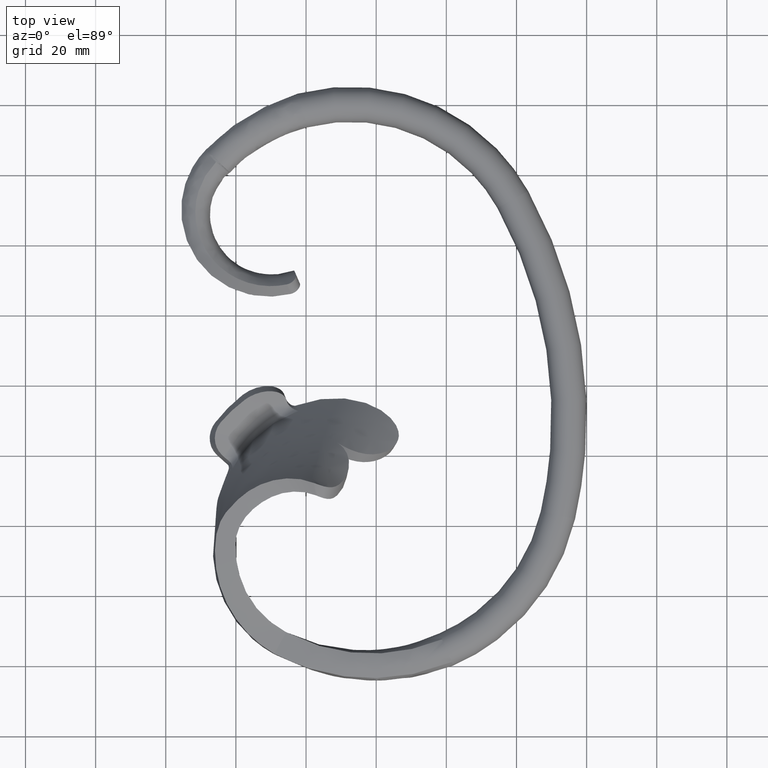
[diagram: clean part render]
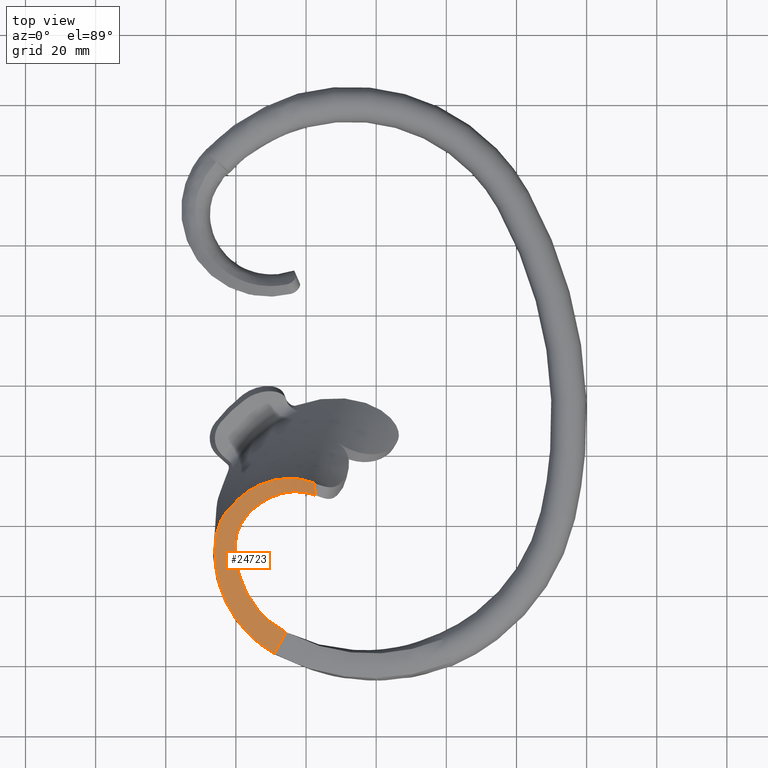
[diagram: same view with one face highlighted and labeled with its STEP entity id]
A machine part, top view. The second image highlights one B-rep face of the part: STEP entity #24723.
In plain terms, the highlighted face is a freeform B-spline surface patch.
Its self-contained STEP definition (entity closure, byte-faithful):
#2 = CARTESIAN_POINT ( 'NONE',  ( -14.88304999597563061, -33.28696228820579250, 16.66782238215462542 ) ) ;
#8 = CARTESIAN_POINT ( 'NONE',  ( -17.23923182708255553, -31.71992743906569601, 17.27948044642575809 ) ) ;
#27 = CARTESIAN_POINT ( 'NONE',  ( -21.58228065602572698, -50.12192340472659424, 10.88831679666244945 ) ) ;
#79 = CARTESIAN_POINT ( 'NONE',  ( -26.24045451160507270, -71.65154455166843661, 4.998371053714732781 ) ) ;
#87 = EDGE_CURVE ( 'NONE', #22962, #23968, #5048, .T. ) ;
#93 = CARTESIAN_POINT ( 'NONE',  ( -36.55542041196871850, -8.847581888902357861, 29.38409123173653370 ) ) ;
#119 = CARTESIAN_POINT ( 'NONE',  ( -36.74584437774961998, -65.45307032359885113, 8.466464962905547509 ) ) ;
#139 = CARTESIAN_POINT ( 'NONE',  ( -24.03254572097256769, -27.01849035772385932, 19.59518727168165952 ) ) ;
#184 = CARTESIAN_POINT ( 'NONE',  ( -61.24390237794341374, -17.98043306155526366, 22.90096062092651508 ) ) ;
#211 = CARTESIAN_POINT ( 'NONE',  ( -27.07668562703288018, -78.05231582564333337, 4.355967691660630692 ) ) ;
#273 = CARTESIAN_POINT ( 'NONE',  ( -64.22908574760910483, -25.04788141393619583, 20.10222040234699037 ) ) ;
#276 = CARTESIAN_POINT ( 'NONE',  ( -17.37623064761124425, -30.53612484044603193, 18.11428800146980933 ) ) ;
#297 = CARTESIAN_POINT ( 'NONE',  ( -11.07158307709314826, -46.01714714677483897, 8.827889380613850534 ) ) ;
#362 = CARTESIAN_POINT ( 'NONE',  ( -26.74807580265561313, -26.47760151851512589, 19.70800027716570568 ) ) ;
#365 = CARTESIAN_POINT ( 'NONE',  ( -17.44353821630858192, -30.15356632296513339, 18.38066102995025730 ) ) ;
#389 = CARTESIAN_POINT ( 'NONE',  ( -24.51694287924814475, -78.62762096208625451, 3.726231312329266743 ) ) ;
#461 = CARTESIAN_POINT ( 'NONE',  ( -52.40421072289199600, -17.66106066479480319, 23.44286761742545266 ) ) ;
#463 = CARTESIAN_POINT ( 'NONE',  ( -17.25513772741848584, -31.37502375583344616, 17.52645774815493951 ) ) ;
#486 = CARTESIAN_POINT ( 'NONE',  ( -14.93890275011376367, -48.84867397879163775, 7.618746361537571232 ) ) ;
#548 = CARTESIAN_POINT ( 'NONE',  ( -17.40714188250847627, -30.35918359186728566, 18.23747776319263281 ) ) ;
#566 = CARTESIAN_POINT ( 'NONE',  ( -23.76800276223861275, -70.83720854708390391, 4.430988240616342111 ) ) ;
#583 = CARTESIAN_POINT ( 'NONE',  ( -45.95954435368926028, -46.36953914593288317, 14.00349141873440928 ) ) ;
#636 = CARTESIAN_POINT ( 'NONE',  ( -17.23250602145366983, -31.53713378231939046, 17.41312537958075168 ) ) ;
#690 = VERTEX_POINT ( 'NONE', #22110 ) ;
#852 = CARTESIAN_POINT ( 'NONE',  ( -42.42005576132930855, -62.89582227590754826, 9.857334821120511847 ) ) ;
#931 = CARTESIAN_POINT ( 'NONE',  ( -44.92042446919321463, -56.37733529282596123, 11.57694849672948578 ) ) ;
#952 = CARTESIAN_POINT ( 'NONE',  ( -52.14219043541660881, -39.99949741287556293, 15.26279140346289509 ) ) ;
#1008 = CARTESIAN_POINT ( 'NONE',  ( -19.37763338324158013, -55.54033646646180244, 6.141323643207011074 ) ) ;
#1045 = CARTESIAN_POINT ( 'NONE',  ( -58.17114806012075690, -43.27856480167555020, 14.80929405496161522 ) ) ;
#1135 = CARTESIAN_POINT ( 'NONE',  ( -64.87442862590914672, -39.29299031041584556, 15.10859450049175656 ) ) ;
#1220 = CARTESIAN_POINT ( 'NONE',  ( -21.80045141664797370, -37.05286632960390136, 14.48947401876601582 ) ) ;
#1268 = CARTESIAN_POINT ( 'NONE',  ( -38.22179457882931786, -39.37153673995346281, 15.75267230631868820 ) ) ;
#1309 = CARTESIAN_POINT ( 'NONE',  ( -43.59679540231753236, -33.35702460030382355, 17.31965639452359795 ) ) ;
#1363 = CARTESIAN_POINT ( 'NONE',  ( -39.78456211468088810, -50.95826924198301100, 12.59001651575711200 ) ) ;
#1407 = CARTESIAN_POINT ( 'NONE',  ( -40.82648745969497384, -41.74283733562101162, 15.29988321396774786 ) ) ;
#1458 = CARTESIAN_POINT ( 'NONE',  ( -48.79030320441199109, -6.066170324978692463, 29.64245323418196065 ) ) ;
#1459 = CARTESIAN_POINT ( 'NONE',  ( -37.16355406481915225, -59.21799781812033814, 10.01059045180241291 ) ) ;
#1497 = CARTESIAN_POINT ( 'NONE',  ( -21.75851216917131126, -45.81844866422024865, 15.02681356090695886 ) ) ;
#1546 = CARTESIAN_POINT ( 'NONE',  ( -31.10313552478493904, -32.90852102020060954, 17.02248135775514015 ) ) ;
#1584 = CARTESIAN_POINT ( 'NONE',  ( -45.45124031043629742, -54.58180882799417333, 12.04883995728515522 ) ) ;
#1636 = CARTESIAN_POINT ( 'NONE',  ( -28.14275097698632422, -31.60580041265582807, 17.29983729951628746 ) ) ;
#1674 = CARTESIAN_POINT ( 'NONE',  ( -25.38592835185588115, -45.90652853644490250, 14.33415933278730492 ) ) ;
#1690 = FACE_OUTER_BOUND ( 'NONE', #10001, .T. ) ;
#1761 = CARTESIAN_POINT ( 'NONE',  ( -54.57324214714129340, -65.82541616077175206, 10.59631498704546360 ) ) ;
#1763 = CARTESIAN_POINT ( 'NONE',  ( -29.20590203114932493, -76.67820026176433146, 5.050141542704593256 ) ) ;
#1792 = CARTESIAN_POINT ( 'NONE',  ( -29.00169225136278683, -76.78488895557035221, 4.990763423597638138 ) ) ;
#1839 = CARTESIAN_POINT ( 'NONE',  ( -21.84692374044760044, -52.07886816622315251, 9.498823231258713307 ) ) ;
#1897 = CARTESIAN_POINT ( 'NONE',  ( -23.71616501861783988, -18.12464939013566578, 25.59554079480919597 ) ) ;
#1919 = CARTESIAN_POINT ( 'NONE',  ( -39.18997134571349505, -71.57942613841635193, 7.742726407499691099 ) ) ;
#1981 = CARTESIAN_POINT ( 'NONE',  ( -16.01599667042383501, -29.01220271380239879, 19.66240578096716618 ) ) ;
#2006 = CARTESIAN_POINT ( 'NONE',  ( -14.00951147619019288, -47.72843868386043908, 10.52237900481375377 ) ) ;
#2071 = CARTESIAN_POINT ( 'NONE',  ( -14.54634898277462973, -32.71137408027787785, 17.24628495429904973 ) ) ;
#2076 = CARTESIAN_POINT ( 'NONE',  ( -17.23863441706071953, -31.71793478229292873, 17.28103157671741741 ) ) ;
#2097 = CARTESIAN_POINT ( 'NONE',  ( -29.02739879444307292, -55.22368061956747454, 9.890204379768253062 ) ) ;
#2158 = CARTESIAN_POINT ( 'NONE',  ( -27.14767077532890127, -15.64556766103455310, 26.55008172130819588 ) ) ;
#2166 = CARTESIAN_POINT ( 'NONE',  ( -53.03717311702193626, -47.24023378078994284, 14.05368353926574798 ) ) ;
#2186 = CARTESIAN_POINT ( 'NONE',  ( -45.08212057791414651, -72.76122410514605576, 8.431912644275577406 ) ) ;
#2250 = CARTESIAN_POINT ( 'NONE',  ( -17.01293227027522903, -33.72985446641753526, 15.82553036801607327 ) ) ;
#2274 = CARTESIAN_POINT ( 'NONE',  ( -24.69764104802029436, -76.14156682832536660, 4.019028863321265632 ) ) ;
#2341 = CARTESIAN_POINT ( 'NONE',  ( -40.43942030654762476, -11.11056776080030772, 27.51111967673364944 ) ) ;
#2346 = CARTESIAN_POINT ( 'NONE',  ( -17.37350141422658112, -30.55193021308178203, 18.10328008020497137 ) ) ;
#2370 = CARTESIAN_POINT ( 'NONE',  ( -27.92562401145848128, -64.87593666641872403, 6.666997070969892469 ) ) ;
#2385 = CARTESIAN_POINT ( 'NONE',  ( -28.79789150392520369, -27.44725173085019065, 19.22315843980391392 ) ) ;
#2395 = CARTESIAN_POINT ( 'NONE',  ( -60.64815135627757314, -53.25077244020190648, 13.00167026195544295 ) ) ;
#2428 = CARTESIAN_POINT ( 'NONE',  ( -47.71931838055840558, -23.41311225586822786, 20.96726724877284909 ) ) ;
#2433 = CARTESIAN_POINT ( 'NONE',  ( -17.23470925474577697, -31.52067703023626777, 17.42464241066453212 ) ) ;
#2453 = CARTESIAN_POINT ( 'NONE',  ( -19.52861687488466558, -51.96181609931883116, 8.485332956363077272 ) ) ;
#2521 = CARTESIAN_POINT ( 'NONE',  ( -21.36852128399526762, -27.34210263700012788, 19.59272200508442197 ) ) ;
#2524 = CARTESIAN_POINT ( 'NONE',  ( -17.27534482439415342, -31.21898326654561728, 17.63600235145351292 ) ) ;
#2548 = CARTESIAN_POINT ( 'NONE',  ( -11.38998960219466206, -45.94935735340602179, 8.131514823912478818 ) ) ;
#2562 = CARTESIAN_POINT ( 'NONE',  ( -17.78244227821610934, -28.33529361589912199, 19.64569450875050904 ) ) ;
#2614 = CARTESIAN_POINT ( 'NONE',  ( -17.22583116413741422, -31.62647520657541733, 17.34962551928811436 ) ) ;
#2637 = CARTESIAN_POINT ( 'NONE',  ( -23.09694662590703373, -64.67541989888951548, 5.190611468749458446 ) ) ;
#2654 = CARTESIAN_POINT ( 'NONE',  ( -37.45372239397935488, -31.30809827050190464, 17.88626926417510887 ) ) ;
#2742 = CARTESIAN_POINT ( 'NONE',  ( -35.44405726250099065, -30.01781865115205861, 18.28102502607469049 ) ) ;
#2821 = CARTESIAN_POINT ( 'NONE',  ( -34.75375901363108255, -29.62422859396167141, 18.40644993436247745 ) ) ;
#2909 = CARTESIAN_POINT ( 'NONE',  ( -45.84551006763418712, -44.82002178655076108, 14.37092731225156861 ) ) ;
#2926 = CARTESIAN_POINT ( 'NONE',  ( -24.41754588625123645, -37.82209700140697350, 14.76480555235520242 ) ) ;
#3001 = CARTESIAN_POINT ( 'NONE',  ( -38.66929179834389885, -32.29982839490286040, 17.60341674961447112 ) ) ;
#3023 = CARTESIAN_POINT ( 'NONE',  ( -61.04214613165529357, -45.14770639642139827, 14.54531790568860039 ) ) ;
#3075 = CARTESIAN_POINT ( 'NONE',  ( -20.67873547969357162, -58.39398214502494966, 5.763131609284093848 ) ) ;
#3081 = CARTESIAN_POINT ( 'NONE',  ( -25.80221587944592798, -70.56699473142863610, 5.035006844263056891 ) ) ;
#3106 = CARTESIAN_POINT ( 'NONE',  ( -40.57955808314939361, -37.63834349511105160, 16.09871652798746666 ) ) ;
#3194 = CARTESIAN_POINT ( 'NONE',  ( -22.09686189510253485, -33.99550751159673467, 15.73879139219272894 ) ) ;
#3286 = CARTESIAN_POINT ( 'NONE',  ( -32.81749703433852261, -34.58081935146176278, 16.62825709748371850 ) ) ;
#3341 = CARTESIAN_POINT ( 'NONE',  ( -39.47401368594695725, -41.97200671989143217, 15.18215250453548926 ) ) ;
#3430 = CARTESIAN_POINT ( 'NONE',  ( -31.66857054714991548, -33.23288689370993865, 16.95823458038569953 ) ) ;
#3468 = CARTESIAN_POINT ( 'NONE',  ( -24.62945296309533916, -44.01414603112915813, 14.85964626058046356 ) ) ;
#3513 = CARTESIAN_POINT ( 'NONE',  ( -27.74783337890824342, -15.85711585186646388, 26.28848801580570083 ) ) ;
#3514 = CARTESIAN_POINT ( 'NONE',  ( -18.49134877892836926, -31.32376061501808451, 17.33880080018142422 ) ) ;
#3519 = EDGE_CURVE ( 'NONE', #6479, #7959, #4519, .T. ) ;
#3557 = CARTESIAN_POINT ( 'NONE',  ( -54.84922027749104956, -66.33842323099950988, 10.54655059047536447 ) ) ;
#3609 = CARTESIAN_POINT ( 'NONE',  ( -38.99399355669622480, -54.63102066103153476, 11.48448671127954235 ) ) ;
#3649 = CARTESIAN_POINT ( 'NONE',  ( -44.11819847951413465, -42.68258658237931513, 14.88174754626398588 ) ) ;
#3697 = CARTESIAN_POINT ( 'NONE',  ( -29.35653634435157144, -32.06076061747394590, 17.20072095290061398 ) ) ;
#3730 = CARTESIAN_POINT ( 'NONE',  ( -49.84898339928093236, -69.45128858742745592, 9.560876268071464068 ) ) ;
#3811 = CARTESIAN_POINT ( 'NONE',  ( -22.83590678994171341, -42.64893067094683943, 14.08939650557565137 ) ) ;
#3826 = CARTESIAN_POINT ( 'NONE',  ( -25.68256528008682338, -70.62868008206122283, 4.994281707943546422 ) ) ;
#3842 = CARTESIAN_POINT ( 'NONE',  ( -29.00327459181427159, -76.78787699990616034, 4.990748218276621628 ) ) ;
#3897 = CARTESIAN_POINT ( 'NONE',  ( -17.25317409002646940, -48.43926549040476459, 11.32871754541982234 ) ) ;
#3954 = CARTESIAN_POINT ( 'NONE',  ( -28.11334378683914537, -69.23113804681942440, 5.854101350412985738 ) ) ;
#3965 = CARTESIAN_POINT ( 'NONE',  ( -49.87163335845229284, -5.059512197990612137, 30.13867590728504098 ) ) ;
#3991 = CARTESIAN_POINT ( 'NONE',  ( -15.22968454829726603, -48.21906845034966693, 10.37517532382407026 ) ) ;
#4049 = CARTESIAN_POINT ( 'NONE',  ( -34.62814437793479527, -11.32584473436234695, 28.10783842235810326 ) ) ;
#4074 = CARTESIAN_POINT ( 'NONE',  ( -45.25574330742657025, -73.30055086385915786, 8.373736684842508993 ) ) ;
#4130 = CARTESIAN_POINT ( 'NONE',  ( -15.08016441814524100, -32.74615650358261831, 17.03255999269647702 ) ) ;
#4155 = CARTESIAN_POINT ( 'NONE',  ( -35.03770086675832829, -76.82183465188903426, 6.223729371484406414 ) ) ;
#4222 = CARTESIAN_POINT ( 'NONE',  ( -17.85343330260933925, -29.26788253075696034, 18.92143881509009162 ) ) ;
#4251 = CARTESIAN_POINT ( 'NONE',  ( -26.18801493837058558, -56.07862970527818192, 8.845996792259697372 ) ) ;
#4318 = CARTESIAN_POINT ( 'NONE',  ( -48.01153614675222769, -18.06069337211340908, 23.36687030309353830 ) ) ;
#4342 = CARTESIAN_POINT ( 'NONE',  ( -27.16570092480720433, -78.57007252027916877, 4.291924207994081364 ) ) ;
#4399 = CARTESIAN_POINT ( 'NONE',  ( -23.83131617572461991, -24.72599329855325934, 20.98815607554912077 ) ) ;
#4403 = CARTESIAN_POINT ( 'NONE',  ( -17.25289957214623371, -31.39157232378648388, 17.51486795931175777 ) ) ;
#4425 = CARTESIAN_POINT ( 'NONE',  ( -24.32536392804882652, -67.58384309735008344, 5.054417941048397367 ) ) ;
#4439 = CARTESIAN_POINT ( 'NONE',  ( -31.12154771976492995, -28.06154516255554654, 18.95699794600206900 ) ) ;
#4489 = CARTESIAN_POINT ( 'NONE',  ( -23.95219932736029378, -28.76912779422063693, 18.52897948705259168 ) ) ;
#4494 = CARTESIAN_POINT ( 'NONE',  ( -17.36726605565510795, -30.58828418398061544, 18.07795417228880197 ) ) ;
#4517 = CARTESIAN_POINT ( 'NONE',  ( -23.26380374276354246, -58.88218390856506090, 6.741251841698966629 ) ) ;
#4519 = B_SPLINE_CURVE_WITH_KNOTS ( 'NONE', 3,
 ( #9235, #5340, #25693, #3081, #5150, #13619, #19754 ),
 .UNSPECIFIED., .F., .F.,
 ( 4, 3, 4 ),
 ( 4.143801971090928823E-05, 0.0001820789685845910729, 0.0003641641245185003742 ),
 .UNSPECIFIED. ) ;
#4588 = CARTESIAN_POINT ( 'NONE',  ( -36.39898472941966645, -21.07577924110864487, 22.24814361569793419 ) ) ;
#4593 = CARTESIAN_POINT ( 'NONE',  ( -17.22654415452518606, -31.59501825680063192, 17.37228774548557908 ) ) ;
#4617 = CARTESIAN_POINT ( 'NONE',  ( -23.70064577009113549, -78.16664225704579394, 3.601003774830035642 ) ) ;
#4700 = CARTESIAN_POINT ( 'NONE',  ( -28.79760280276325801, -67.66043874290289750, 6.321002664618036171 ) ) ;
#4715 = CARTESIAN_POINT ( 'NONE',  ( -39.12052358246927497, -68.10658906617844366, 8.332917847836599279 ) ) ;
#4768 = CARTESIAN_POINT ( 'NONE',  ( -17.35532733444442499, -30.65889122550192170, 18.02873901360817754 ) ) ;
#4804 = CARTESIAN_POINT ( 'NONE',  ( -41.31835122177561459, -64.93928339145402617, 9.288266958761278502 ) ) ;
#4878 = CARTESIAN_POINT ( 'NONE',  ( -18.25590430347113013, -53.05708219830670203, 6.732636923621626579 ) ) ;
#4892 = CARTESIAN_POINT ( 'NONE',  ( -45.55962594722821279, -42.89493279644634072, 14.82793700141172977 ) ) ;
#4986 = CARTESIAN_POINT ( 'NONE',  ( -44.85146801855162835, -40.24449472050432774, 15.47958469594900599 ) ) ;
#5004 = CARTESIAN_POINT ( 'NONE',  ( -23.55273371933588322, -40.52230309553237220, 14.27753960291085278 ) ) ;
#5048 = B_SPLINE_CURVE_WITH_KNOTS ( 'NONE', 3,
 ( #7841, #1792, #3842, #6948 ),
 .UNSPECIFIED., .F., .F.,
 ( 4, 4 ),
 ( 0.000000000000000000, 1.014356805921147536E-05 ),
 .UNSPECIFIED. ) ;
#5088 = CARTESIAN_POINT ( 'NONE',  ( -31.30756074745870521, -31.52695712940377959, 17.47164078503480056 ) ) ;
#5142 = CARTESIAN_POINT ( 'NONE',  ( -11.11253460726878828, -45.65520054489374502, 7.924785001066913637 ) ) ;
#5150 = CARTESIAN_POINT ( 'NONE',  ( -25.85378472561356489, -70.54025718488624364, 5.052603626139828386 ) ) ;
#5182 = CARTESIAN_POINT ( 'NONE',  ( -67.61584669479015020, -33.02697401433733404, 16.60671115645513751 ) ) ;
#5279 = CARTESIAN_POINT ( 'NONE',  ( -39.77825521378333207, -33.47329954492249016, 17.25343413411925297 ) ) ;
#5340 = CARTESIAN_POINT ( 'NONE',  ( -25.72250080360754509, -70.60820815758465585, 5.007839705018125365 ) ) ;
#5367 = CARTESIAN_POINT ( 'NONE',  ( -55.14017919963502123, -41.35824368790354555, 14.89042250014866831 ) ) ;
#5372 = B_SPLINE_CURVE_WITH_KNOTS ( 'NONE', 3,
 ( #12326, #12414, #79, #6303, #5946, #12146, #22766, #20341, #8025, #26564 ),
 .UNSPECIFIED., .F., .F.,
 ( 4, 2, 2, 2, 4 ),
 ( 2.450985162930025744E-06, 0.001750133095896293798, 0.003497815206629657867, 0.005245497317363021286, 0.006993179428096385139 ),
 .UNSPECIFIED. ) ;
#5505 = CARTESIAN_POINT ( 'NONE',  ( -14.81336577279887123, -32.72244648953569168, 17.13908132784712279 ) ) ;
#5547 = CARTESIAN_POINT ( 'NONE',  ( -42.73832124996749826, -52.41805036209215984, 12.38656689705176461 ) ) ;
#5602 = CARTESIAN_POINT ( 'NONE',  ( -35.90899318601559997, -61.35029062142383793, 9.263900235074258305 ) ) ;
#5638 = CARTESIAN_POINT ( 'NONE',  ( -29.13268363453375542, -49.02589258339622091, 12.67404971958855953 ) ) ;
#5655 = CARTESIAN_POINT ( 'NONE',  ( -29.00485685483359077, -76.79086508510022213, 4.990732984937420902 ) ) ;
#5686 = CARTESIAN_POINT ( 'NONE',  ( -35.21524646458401264, -62.38407613973532051, 8.886277461513822473 ) ) ;
#5721 = CARTESIAN_POINT ( 'NONE',  ( -39.94363000235112793, -50.51902377437217240, 12.72069765918751649 ) ) ;
#5749 = EDGE_CURVE ( 'NONE', #6479, #22962, #5372, .T. ) ;
#5768 = CARTESIAN_POINT ( 'NONE',  ( -24.31041535979998969, -30.81966347909119008, 17.46500157086153493 ) ) ;
#5808 = CARTESIAN_POINT ( 'NONE',  ( -44.39585060122897886, -60.32907827761978581, 10.62910430871995437 ) ) ;
#5896 = CARTESIAN_POINT ( 'NONE',  ( -22.25023288392447185, -42.83825946574751953, 13.96242164861305568 ) ) ;
#5946 = CARTESIAN_POINT ( 'NONE',  ( -27.07911937259184754, -73.18485332406912391, 5.000462641467970037 ) ) ;
#5962 = CARTESIAN_POINT ( 'NONE',  ( -51.28140888324437441, -4.779713323947555992, 30.15655972145906816 ) ) ;
#5984 = CARTESIAN_POINT ( 'NONE',  ( -33.41185907118022413, -60.05825343200153554, 9.172913789509753002 ) ) ;
#6033 = ORIENTED_EDGE ( 'NONE', *, *, #5749, .F. ) ;
#6034 = CARTESIAN_POINT ( 'NONE',  ( -32.87278162277126370, -65.28417648861855582, 7.754324219248616146 ) ) ;
#6045 = CARTESIAN_POINT ( 'NONE',  ( -15.29250181789559804, -32.20792360735942594, 17.38918278754470848 ) ) ;
#6065 = CARTESIAN_POINT ( 'NONE',  ( -56.26929759286810651, -49.36981306021048965, 13.58462572331224116 ) ) ;
#6069 = CARTESIAN_POINT ( 'NONE',  ( -19.30300625528481362, -50.31747527887056748, 9.844903506384715897 ) ) ;
#6131 = CARTESIAN_POINT ( 'NONE',  ( -30.39273621901786271, -13.22225992004078599, 27.57043244499419998 ) ) ;
#6157 = CARTESIAN_POINT ( 'NONE',  ( -40.16862357131167016, -75.77633753126619354, 7.267746365170403067 ) ) ;
#6223 = CARTESIAN_POINT ( 'NONE',  ( -21.20391818012354079, -20.91299940798323220, 24.22668828967719179 ) ) ;
#6228 = B_SPLINE_SURFACE_WITH_KNOTS ( 'NONE', 3, 3, ( 
 ( #20618, #24683, #8301, #22508, #20446, #22695, #93, #26663, #14221, #14399, #1897, #6223, #14482, #24596, #1981, #10373, #12163, #2071, #16393 ),
 ( #5962, #8041, #3965, #26579, #13787, #24769, #18382, #8132, #6131, #2158, #12248, #26136, #16303, #15867, #10200, #12429, #8222, #5505, #14315 ),
 ( #16579, #21973, #11729, #1458, #16486, #10113, #12341, #4049, #18471, #3513, #20532, #22600, #20359, #17948, #10287, #17862, #6045, #4130, #2 ),
 ( #7601, #19914, #18562, #9669, #24061, #24501, #2341, #16939, #10832, #8662, #18918, #12515, #23065, #8578, #4222, #6594, #6316, #12873, #24958 ),
 ( #20709, #22778, #18652, #22969, #25230, #12702, #20886, #14847, #25136, #14582, #12607, #16750, #4399, #2521, #12786, #19007, #23148, #8389, #2250 ),
 ( #6684, #10468, #184, #24860, #16666, #461, #4318, #25042, #18744, #4588, #6404, #10637, #362, #4489, #14755, #18833, #20799, #20980, #10737 ),
 ( #6498, #8486, #273, #21076, #8753, #22871, #10550, #2428, #14669, #16848, #11413, #7362, #21834, #21750, #9534, #3194, #13553, #9262, #25813 ),
 ( #5182, #25908, #9443, #11320, #19592, #7278, #7191, #17440, #23655, #15629, #13461, #21477, #5088, #17621, #21658, #9345, #23737, #1220, #19425 ),
 ( #23921, #25721, #17536, #1135, #11582, #15538, #25996, #25639, #7098, #1309, #5279, #9175, #3286, #17710, #13651, #2926, #21563, #19686, #19506 ),
 ( #13375, #23563, #11231, #13282, #3023, #1045, #5367, #952, #15440, #7452, #3106, #17349, #23824, #11496, #15345, #19782, #5004, #6253, #22902 ),
 ( #8606, #19477, #18706, #2395, #22624, #6065, #2166, #12861, #9968, #3649, #1407, #15813, #14077, #24100, #18246, #7903, #24358, #3811, #5896 ),
 ( #9706, #12103, #20293, #10050, #9885, #24189, #12022, #11848, #16156, #24439, #7813, #11933, #22185, #22274, #26513, #3468, #7981, #18067, #17902 ),
 ( #3557, #1761, #26269, #24278, #11768, #13913, #26346, #1584, #5547, #5721, #13999, #19952, #22101, #15992, #1674, #22362, #20128, #1497, #7640 ),
 ( #16072, #26176, #3730, #18161, #9798, #22014, #5808, #13828, #15907, #26428, #17985, #20211, #5638, #20040, #7725, #6342, #8157, #12188, #14510 ),
 ( #24622, #4074, #2186, #26688, #26605, #6251, #18498, #22630, #18589, #20736, #20646, #8417, #14424, #24795, #20472, #10312, #12275, #16421, #10399 ),
 ( #22533, #6157, #20556, #18406, #1919, #10225, #119, #24710, #5984, #16328, #2097, #8248, #12370, #27, #12452, #3897, #18322, #22804, #14341 ),
 ( #16515, #10494, #4155, #24887, #10140, #20385, #12540, #8328, #8067, #16603, #4251, #14159, #1839, #6069, #22721, #3991, #2006, #18676, #22448 ),
 ( #24528, #14250, #16244, #23177, #20824, #22999, #4700, #2370, #10937, #8688, #10665, #22900, #2453, #25068, #25343, #23088, #20911, #8514, #12631 ),
 ( #4342, #211, #16875, #18769, #25256, #14969, #6794, #14609, #18856, #4517, #14692, #6526, #8604, #10575, #6431, #24982, #297, #12727, #10855 ),
 ( #389, #19128, #16775, #2274, #10765, #14781, #4425, #18943, #6620, #16692, #25162, #21009, #12812, #486, #14874, #2548, #21101, #8875, #16965 ),
 ( #8782, #4617, #19033, #6713, #12899, #566, #17050, #2637, #21185, #23272, #15403, #4878, #19296, #17500, #23707, #5142, #21619, #21443, #9040 ),
 ( #25686, #6974, #9138, #23362, #17314, #19386, #21360, #17141, #13248, #3075, #1008, #11285, #15131, #11113, #7246, #9312, #23443, #19556, #25514 ) ),
 .UNSPECIFIED., .F., .F., .F.,
 ( 4, 2, 1, 1, 1, 1, 1, 1, 1, 1, 1, 1, 1, 1, 1, 1, 2, 4 ),
 ( 4, 2, 1, 1, 1, 1, 1, 1, 1, 1, 1, 1, 1, 2, 4 ),
 ( -0.02700534760595309572, 0.000000000000000000, 0.06666666666666666574, 0.1333333333333333315, 0.2000000000000000111, 0.2666666666666666630, 0.3333333333333333148, 0.4000000000000000222, 0.4666666666666666741, 0.5333333333333333259, 0.5999999999999999778, 0.6666666666666666297, 0.7333333333333333925, 0.8000000000000000444, 0.8666666666666666963, 0.9333333333333333481, 1.000000000000000000, 1.040117028268434662 ),
 ( -0.04076715736873655349, 0.000000000000000000, 0.06666666666666666574, 0.1666666666666666574, 0.2333333333333333370, 0.3333333333333333148, 0.4000000000000000222, 0.5000000000000000000, 0.5999999999999999778, 0.6666666666666666297, 0.7666666666666666075, 0.8333333333333334814, 0.9333333333333333481, 1.000000000000000000, 1.048167898193613556 ),
 .UNSPECIFIED. ) ;
#6251 = CARTESIAN_POINT ( 'NONE',  ( -42.42975974084493629, -66.32211469929416126, 9.175285520377499893 ) ) ;
#6253 = CARTESIAN_POINT ( 'NONE',  ( -22.96826845539435880, -40.77466173895619050, 14.13441381299009336 ) ) ;
#6291 = EDGE_CURVE ( 'NONE', #22147, #23968, #26533, .T. ) ;
#6303 = CARTESIAN_POINT ( 'NONE',  ( -26.79938836090175869, -72.67384576054708134, 5.000236317991530122 ) ) ;
#6316 = CARTESIAN_POINT ( 'NONE',  ( -16.24625312122316600, -32.34153460884962783, 17.00813946554116995 ) ) ;
#6342 = CARTESIAN_POINT ( 'NONE',  ( -21.38443109734215142, -47.25994227185805840, 13.28787390354610487 ) ) ;
#6356 = CARTESIAN_POINT ( 'NONE',  ( -26.43152576023618394, -27.09199398145154092, 19.43705313546729840 ) ) ;
#6404 = CARTESIAN_POINT ( 'NONE',  ( -32.79284005370585930, -22.73534878985124763, 21.50971458007469650 ) ) ;
#6431 = CARTESIAN_POINT ( 'NONE',  ( -13.78733426465294798, -47.74270956580966896, 8.459976431436391664 ) ) ;
#6479 = VERTEX_POINT ( 'NONE', #3826 ) ;
#6498 = CARTESIAN_POINT ( 'NONE',  ( -65.54829524395982787, -25.39441335096693209, 19.89597735489035557 ) ) ;
#6526 = CARTESIAN_POINT ( 'NONE',  ( -19.86494527087746675, -53.60227143214292767, 7.483724310105302813 ) ) ;
#6543 = CARTESIAN_POINT ( 'NONE',  ( -33.33983862066013160, -28.91181486970680581, 18.64328391624970038 ) ) ;
#6594 = CARTESIAN_POINT ( 'NONE',  ( -16.87102913115493763, -31.08434848844143872, 17.80252670354187572 ) ) ;
#6598 = CARTESIAN_POINT ( 'NONE',  ( -17.37928607256936075, -30.51848814310301705, 18.12656983461621962 ) ) ;
#6620 = CARTESIAN_POINT ( 'NONE',  ( -22.92959435979683036, -61.64358959570984098, 5.802482224524566412 ) ) ;
#6684 = CARTESIAN_POINT ( 'NONE',  ( -62.66803441802768049, -18.17359616415784984, 22.79308712087171074 ) ) ;
#6689 = CARTESIAN_POINT ( 'NONE',  ( -17.23627344348185275, -31.50934780522369394, 17.43256239071487812 ) ) ;
#6713 = CARTESIAN_POINT ( 'NONE',  ( -23.81649662464997874, -76.11413245687276685, 3.774262696928154970 ) ) ;
#6794 = CARTESIAN_POINT ( 'NONE',  ( -26.25669575383718524, -67.71559460454163570, 5.617982597076227158 ) ) ;
#6812 = CARTESIAN_POINT ( 'NONE',  ( -42.74333333855822303, -36.52845569511621449, 16.44416259097522470 ) ) ;
#6908 = CARTESIAN_POINT ( 'NONE',  ( -37.10740376972344734, -70.47553793187961446, 7.562333415929653135 ) ) ;
#6948 = CARTESIAN_POINT ( 'NONE',  ( -29.00485685483359077, -76.79086508510022213, 4.990732984937420902 ) ) ;
#6974 = CARTESIAN_POINT ( 'NONE',  ( -22.79821106583027657, -78.20516781296402087, 3.406756437531585302 ) ) ;
#6987 = CARTESIAN_POINT ( 'NONE',  ( -37.63504822090774837, -69.89702408099539355, 7.756593632708733921 ) ) ;
#7076 = CARTESIAN_POINT ( 'NONE',  ( -45.78445169787612201, -51.82266339261472154, 12.68768415291367013 ) ) ;
#7098 = CARTESIAN_POINT ( 'NONE',  ( -47.50225224236894661, -33.64382788348844144, 17.30769328071493263 ) ) ;
#7191 = CARTESIAN_POINT ( 'NONE',  ( -53.77057949838462036, -29.05839420109505511, 18.77985446439618400 ) ) ;
#7246 = CARTESIAN_POINT ( 'NONE',  ( -12.35363819864810608, -46.50032800545243816, 7.521374071173670295 ) ) ;
#7278 = CARTESIAN_POINT ( 'NONE',  ( -57.96150194120395582, -29.85255969014346533, 18.49160000399384884 ) ) ;
#7362 = CARTESIAN_POINT ( 'NONE',  ( -32.24154033641904249, -27.29747947704349187, 19.28078553750067670 ) ) ;
#7452 = CARTESIAN_POINT ( 'NONE',  ( -44.57144620098218013, -37.99454215578915495, 16.06294539459986126 ) ) ;
#7507 = CARTESIAN_POINT ( 'NONE',  ( -40.13412981191267903, -47.22983550209690407, 13.68194747380154475 ) ) ;
#7601 = CARTESIAN_POINT ( 'NONE',  ( -54.81617760777609760, -7.836140089436118394, 28.14304538929614807 ) ) ;
#7602 = CARTESIAN_POINT ( 'NONE',  ( -39.59028155917057035, -52.19235661238418089, 12.22393849308232738 ) ) ;
#7640 = CARTESIAN_POINT ( 'NONE',  ( -21.22570024233204222, -45.84888833104819383, 15.08813210351208056 ) ) ;
#7688 = CARTESIAN_POINT ( 'NONE',  ( -23.66085870229003518, -30.77566497544479063, 17.47523111579887001 ) ) ;
#7725 = CARTESIAN_POINT ( 'NONE',  ( -23.37069250994204239, -47.48282945705266656, 13.19872904447321460 ) ) ;
#7743 = CARTESIAN_POINT ( 'NONE',  ( -29.10547125654710499, -76.73476826442235676, 5.020498785313237455 ) ) ;
#7813 = CARTESIAN_POINT ( 'NONE',  ( -38.86897184285511031, -45.76138442753032365, 14.08117845023463310 ) ) ;
#7841 = CARTESIAN_POINT ( 'NONE',  ( -29.00010983521765340, -76.78190095124251968, 4.990778613015220522 ) ) ;
#7903 = CARTESIAN_POINT ( 'NONE',  ( -24.88330537894050565, -42.08974221320934106, 14.45567364469258642 ) ) ;
#7959 = VERTEX_POINT ( 'NONE', #26281 ) ;
#7981 = CARTESIAN_POINT ( 'NONE',  ( -23.14856074118288021, -44.20917292757976469, 14.68885627374139702 ) ) ;
#8025 = CARTESIAN_POINT ( 'NONE',  ( -28.72747013498178603, -76.26708782397037112, 4.993395704300838567 ) ) ;
#8041 = CARTESIAN_POINT ( 'NONE',  ( -50.57801462487497446, -4.912833816981366120, 30.15134781835474698 ) ) ;
#8067 = CARTESIAN_POINT ( 'NONE',  ( -30.01539287589895366, -61.27931773739841503, 8.109156086767992377 ) ) ;
#8118 = CARTESIAN_POINT ( 'NONE',  ( -30.14758441452654836, -67.78862973861777164, 6.620689098485479818 ) ) ;
#8132 = CARTESIAN_POINT ( 'NONE',  ( -33.94061967562323190, -10.98667684873577599, 28.42763327199847367 ) ) ;
#8157 = CARTESIAN_POINT ( 'NONE',  ( -20.05076865058911295, -47.14870071295603537, 13.38927875493329189 ) ) ;
#8222 = CARTESIAN_POINT ( 'NONE',  ( -15.01540730946257440, -32.18255112505889315, 17.50010118531356085 ) ) ;
#8248 = CARTESIAN_POINT ( 'NONE',  ( -26.58158967284230911, -53.19084838347390587, 10.24580279800058058 ) ) ;
#8301 = CARTESIAN_POINT ( 'NONE',  ( -49.05394032654318437, -4.470930504521455795, 30.58921510247892428 ) ) ;
#8328 = CARTESIAN_POINT ( 'NONE',  ( -31.57887722416989718, -64.20084578037612744, 7.730848953508481003 ) ) ;
#8389 = CARTESIAN_POINT ( 'NONE',  ( -17.29533554816066498, -33.20916664896029147, 16.15331396832356958 ) ) ;
#8417 = CARTESIAN_POINT ( 'NONE',  ( -29.16379027693363923, -51.96130190584123199, 11.28165208610023917 ) ) ;
#8486 = CARTESIAN_POINT ( 'NONE',  ( -64.89481934397082341, -25.21679481018527369, 20.00288734374057142 ) ) ;
#8514 = CARTESIAN_POINT ( 'NONE',  ( -11.61817854958374951, -46.65351046945346525, 9.519248185324084233 ) ) ;
#8578 = CARTESIAN_POINT ( 'NONE',  ( -19.49773820114696576, -26.76190516079396531, 20.36795893533033563 ) ) ;
#8582 = CARTESIAN_POINT ( 'NONE',  ( -17.53403944874510145, -29.64362738183997337, 18.73590261278848601 ) ) ;
#8604 = CARTESIAN_POINT ( 'NONE',  ( -18.09240370361840533, -51.54854675667085218, 7.796933623758552478 ) ) ;
#8606 = CARTESIAN_POINT ( 'NONE',  ( -62.51767222325982232, -55.34060875225875265, 12.81900946316843815 ) ) ;
#8617 = CARTESIAN_POINT ( 'NONE',  ( -23.22097144700925497, -27.06102557694573463, 19.63314417831172420 ) ) ;
#8662 = CARTESIAN_POINT ( 'NONE',  ( -29.79509709870442435, -16.67342719385005978, 25.38298831269678146 ) ) ;
#8665 = CARTESIAN_POINT ( 'NONE',  ( -17.30201705213898578, -31.01165285959423912, 17.78181040029615190 ) ) ;
#8688 = CARTESIAN_POINT ( 'NONE',  ( -25.17542490970198799, -58.98387512719768466, 7.434011217138204231 ) ) ;
#8753 = CARTESIAN_POINT ( 'NONE',  ( -59.69896408288233403, -24.00993598144879471, 20.52429820546796435 ) ) ;
#8757 = CARTESIAN_POINT ( 'NONE',  ( -17.29252241442377525, -31.08414309165633327, 17.73083601674443699 ) ) ;
#8782 = CARTESIAN_POINT ( 'NONE',  ( -23.63062765014267441, -78.69458275924795032, 3.571828556897667539 ) ) ;
#8853 = CARTESIAN_POINT ( 'NONE',  ( -17.25834531825563545, -31.35072449429183195, 17.54349127552073995 ) ) ;
#8875 = CARTESIAN_POINT ( 'NONE',  ( -9.834860804450832106, -44.91620479659682985, 8.338134223167170234 ) ) ;
#8890 = CARTESIAN_POINT ( 'NONE',  ( -40.49288385229950649, -66.24135130886767797, 8.906346290498227347 ) ) ;
#8942 = CARTESIAN_POINT ( 'NONE',  ( -17.25229826913609088, -31.39599681520843788, 17.51176999738938633 ) ) ;
#9040 = CARTESIAN_POINT ( 'NONE',  ( -9.113915778393474554, -44.30477659514496480, 8.190357513285215774 ) ) ;
#9138 = CARTESIAN_POINT ( 'NONE',  ( -22.85989647950032477, -77.65823510758768577, 3.409835934689462444 ) ) ;
#9156 = CARTESIAN_POINT ( 'NONE',  ( -44.49760703281624075, -57.86174256721606213, 11.19514175373491227 ) ) ;
#9175 = CARTESIAN_POINT ( 'NONE',  ( -36.04254398643138302, -33.90854558849091660, 16.99233181560638073 ) ) ;
#9235 = CARTESIAN_POINT ( 'NONE',  ( -25.68256528008682338, -70.62868008206122283, 4.994281707943546422 ) ) ;
#9262 = CARTESIAN_POINT ( 'NONE',  ( -20.60241539807816125, -35.44922623083919433, 14.90695620963277968 ) ) ;
#9312 = CARTESIAN_POINT ( 'NONE',  ( -10.85885778997419138, -45.34020554174695405, 7.722794768522113884 ) ) ;
#9345 = CARTESIAN_POINT ( 'NONE',  ( -23.48472186197793476, -35.78693849290276319, 15.20365073708716075 ) ) ;
#9443 = CARTESIAN_POINT ( 'NONE',  ( -66.31485253616311581, -32.44008761638325922, 16.87023755468136699 ) ) ;
#9534 = CARTESIAN_POINT ( 'NONE',  ( -23.69891423106071926, -32.56006527447610210, 16.53926190700835974 ) ) ;
#9581 = CARTESIAN_POINT ( 'NONE',  ( -29.94778952434355190, -32.32286771330858954, 17.14360385857272107 ) ) ;
#9669 = CARTESIAN_POINT ( 'NONE',  ( -51.48270489545015494, -8.245655266007991813, 28.14922185881498251 ) ) ;
#9670 = CARTESIAN_POINT ( 'NONE',  ( -38.61699637349200032, -55.81509073367556795, 11.11541708432728726 ) ) ;
#9706 = CARTESIAN_POINT ( 'NONE',  ( -58.92959422902793420, -61.29928738333249782, 11.68219044720871302 ) ) ;
#9758 = CARTESIAN_POINT ( 'NONE',  ( -40.08532601566764697, -44.71429812649337521, 14.40794659618721774 ) ) ;
#9798 = CARTESIAN_POINT ( 'NONE',  ( -48.15833160414198488, -65.97352818607217273, 9.952706916363929679 ) ) ;
#9850 = CARTESIAN_POINT ( 'NONE',  ( -40.15389758277526511, -46.60357552756023836, 13.86107291644191442 ) ) ;
#9885 = CARTESIAN_POINT ( 'NONE',  ( -55.74551284193277212, -57.22646890599111913, 12.18109569111903312 ) ) ;
#9931 = CARTESIAN_POINT ( 'NONE',  ( -37.49426374162440823, -38.30876563623097297, 15.94570858096657240 ) ) ;
#9968 = CARTESIAN_POINT ( 'NONE',  ( -47.16364886762573150, -44.01813498318331597, 14.58219752627116428 ) ) ;
#9983 = CARTESIAN_POINT ( 'NONE',  ( -29.02163133291335129, -76.78154123664518238, 4.995699301664487280 ) ) ;
#10001 = EDGE_LOOP ( 'NONE', ( #15198, #11574, #26517, #6033, #14556, #15934, #20313 ) ) ;
#10050 = CARTESIAN_POINT ( 'NONE',  ( -57.25408219067018933, -59.10614876669865225, 11.97837276245342508 ) ) ;
#10067 = CARTESIAN_POINT ( 'NONE',  ( -29.05515909077308834, -76.76284808900582846, 5.005618114763945137 ) ) ;
#10113 = CARTESIAN_POINT ( 'NONE',  ( -42.12794341717425795, -7.958489981307688588, 29.20309861178252930 ) ) ;
#10140 = CARTESIAN_POINT ( 'NONE',  ( -34.51644038785632063, -73.17287999767022200, 6.645176361965317469 ) ) ;
#10200 = CARTESIAN_POINT ( 'NONE',  ( -16.35491987978212691, -29.03714238542587367, 19.52614978510740684 ) ) ;
#10225 = CARTESIAN_POINT ( 'NONE',  ( -38.16076279968357454, -68.63659102940944479, 8.086299197371307201 ) ) ;
#10287 = CARTESIAN_POINT ( 'NONE',  ( -16.69267224013572104, -29.07704838540398029, 19.39035419543292704 ) ) ;
#10312 = CARTESIAN_POINT ( 'NONE',  ( -19.45758108603465075, -48.10133645007072545, 12.47413079639251698 ) ) ;
#10373 = CARTESIAN_POINT ( 'NONE',  ( -15.23000326208810407, -30.88164979254737474, 18.46345119427219572 ) ) ;
#10399 = CARTESIAN_POINT ( 'NONE',  ( -17.07787233103894309, -47.69144321286173493, 12.74260320575182703 ) ) ;
#10468 = CARTESIAN_POINT ( 'NONE',  ( -61.95808381996842229, -18.06990883968778761, 22.84876034643433584 ) ) ;
#10494 = CARTESIAN_POINT ( 'NONE',  ( -35.10577972129065927, -77.36589483365517594, 6.161876898882619358 ) ) ;
#10550 = CARTESIAN_POINT ( 'NONE',  ( -51.49233605129462887, -23.28321386306727092, 20.95144314049825596 ) ) ;
#10575 = CARTESIAN_POINT ( 'NONE',  ( -15.87876518109202983, -49.41387288419927870, 8.151778408914090335 ) ) ;
#10637 = CARTESIAN_POINT ( 'NONE',  ( -29.44053478732899976, -24.63251840856128894, 20.62047048613252187 ) ) ;
#10642 = CARTESIAN_POINT ( 'NONE',  ( -17.33358273044957443, -30.79170184950605460, 17.93605278892473720 ) ) ;
#10665 = CARTESIAN_POINT ( 'NONE',  ( -23.40617968284801975, -56.34400318138398234, 7.803005357820260279 ) ) ;
#10737 = CARTESIAN_POINT ( 'NONE',  ( -18.72588124651424479, -34.62877861476343355, 15.19247676482610210 ) ) ;
#10743 = CARTESIAN_POINT ( 'NONE',  ( -17.31861810189866091, -30.89113369354326721, 17.86644553946018732 ) ) ;
#10765 = CARTESIAN_POINT ( 'NONE',  ( -24.46943187466903069, -74.02786764890868199, 4.275056890684560074 ) ) ;
#10832 = CARTESIAN_POINT ( 'NONE',  ( -33.25109190270048032, -14.51279365321824599, 26.26767692066217563 ) ) ;
#10836 = CARTESIAN_POINT ( 'NONE',  ( -17.22826609743009385, -31.67192636197872702, 17.31624364663953486 ) ) ;
#10855 = CARTESIAN_POINT ( 'NONE',  ( -10.10609237537231841, -45.48741667400092581, 8.948652150944106154 ) ) ;
#10868 = CARTESIAN_POINT ( 'NONE',  ( -19.29555301366170283, -27.78364728047468901, 19.69252213382184635 ) ) ;
#10915 = CARTESIAN_POINT ( 'NONE',  ( -17.22598726384106627, -31.61080773913309372, 17.36094956320422966 ) ) ;
#10937 = CARTESIAN_POINT ( 'NONE',  ( -26.67618762123911225, -61.84510137892972637, 7.054404395195618349 ) ) ;
#10949 = CARTESIAN_POINT ( 'NONE',  ( -44.56249596790230072, -39.52406489184711091, 15.66378619455811894 ) ) ;
#11040 = CARTESIAN_POINT ( 'NONE',  ( -43.69961175229379080, -60.05012258765500377, 10.61976618950390971 ) ) ;
#11113 = CARTESIAN_POINT ( 'NONE',  ( -14.27682341529400212, -48.33342473991309873, 7.217267553489703502 ) ) ;
#11129 = CARTESIAN_POINT ( 'NONE',  ( -32.47073701710120019, -74.58389243826903225, 6.020324522986857829 ) ) ;
#11211 = CARTESIAN_POINT ( 'NONE',  ( -41.99605730037348650, -35.60974046711590546, 16.68863213447038163 ) ) ;
#11231 = CARTESIAN_POINT ( 'NONE',  ( -64.27677775553070205, -47.70690262868752995, 14.21943440452302987 ) ) ;
#11285 = CARTESIAN_POINT ( 'NONE',  ( -17.82607247693290020, -52.85093509837723502, 6.521257725353907908 ) ) ;
#11320 = CARTESIAN_POINT ( 'NONE',  ( -64.60545184231692417, -31.76077951389834197, 17.23264325068056024 ) ) ;
#11413 = CARTESIAN_POINT ( 'NONE',  ( -35.79558655610045292, -25.86646366195153490, 19.95977211285378061 ) ) ;
#11496 = CARTESIAN_POINT ( 'NONE',  ( -30.04694879014948938, -38.44252160269424934, 15.52399414759176111 ) ) ;
#11574 = ORIENTED_EDGE ( 'NONE', *, *, #6291, .T. ) ;
#11582 = CARTESIAN_POINT ( 'NONE',  ( -62.69555326300087472, -37.97118970892427825, 15.34829274437447921 ) ) ;
#11635 = CARTESIAN_POINT ( 'NONE',  ( -17.27508974795539132, -31.81506101191068581, 17.20429503606681720 ) ) ;
#11729 = CARTESIAN_POINT ( 'NONE',  ( -50.66951272016168417, -5.682273544722550085, 29.68967234115702780 ) ) ;
#11730 = CARTESIAN_POINT ( 'NONE',  ( -40.12975962342984815, -45.34569778149688801, 14.22368106478795902 ) ) ;
#11768 = CARTESIAN_POINT ( 'NONE',  ( -52.18773874722654682, -61.98875125586973667, 11.03837325116218437 ) ) ;
#11814 = CARTESIAN_POINT ( 'NONE',  ( -39.99633457859417973, -49.09884356960704110, 13.13916404576845842 ) ) ;
#11848 = CARTESIAN_POINT ( 'NONE',  ( -48.23364468108631087, -50.44512653244211720, 13.10658468235521390 ) ) ;
#11895 = CARTESIAN_POINT ( 'NONE',  ( -33.70085927235410850, -64.36562403498116680, 8.128761794662823448 ) ) ;
#11933 = CARTESIAN_POINT ( 'NONE',  ( -35.86334890839415834, -44.78405191071995262, 14.50379974995757060 ) ) ;
#11983 = CARTESIAN_POINT ( 'NONE',  ( -26.24351574858247105, -31.09977457961623415, 17.40653764773059464 ) ) ;
#12022 = CARTESIAN_POINT ( 'NONE',  ( -50.78116804476070456, -52.35119184840090867, 12.76930273278557770 ) ) ;
#12103 = CARTESIAN_POINT ( 'NONE',  ( -58.58176551438107538, -60.82579763276140028, 11.75027632385560850 ) ) ;
#12146 = CARTESIAN_POINT ( 'NONE',  ( -27.63394099997113074, -74.20939431927691032, 4.999672587458991124 ) ) ;
#12163 = CARTESIAN_POINT ( 'NONE',  ( -14.73795336648461429, -32.17018539766006313, 17.61170326446440271 ) ) ;
#12188 = CARTESIAN_POINT ( 'NONE',  ( -19.48075724016461407, -47.11310234307516964, 13.44554091452339684 ) ) ;
#12248 = CARTESIAN_POINT ( 'NONE',  ( -24.26916356123554053, -18.26619312842254317, 25.35695988037766568 ) ) ;
#12254 = CARTESIAN_POINT ( 'NONE',  ( -17.27508974795539132, -31.81506101191068581, 17.20429503606681720 ) ) ;
#12275 = CARTESIAN_POINT ( 'NONE',  ( -18.16441470242125078, -47.85157824659396653, 12.62879298964803532 ) ) ;
#12326 = CARTESIAN_POINT ( 'NONE',  ( -25.68256528008682338, -70.62868008206122283, 4.994281707943546422 ) ) ;
#12341 = CARTESIAN_POINT ( 'NONE',  ( -38.00849797432638866, -9.633082619095956645, 28.69519043549007975 ) ) ;
#12370 = CARTESIAN_POINT ( 'NONE',  ( -24.31631283719469039, -51.63300901348345207, 10.55505467454319835 ) ) ;
#12414 = CARTESIAN_POINT ( 'NONE',  ( -25.96168305315395486, -71.14001650290249756, 4.996732496789152655 ) ) ;
#12429 = CARTESIAN_POINT ( 'NONE',  ( -15.53224568276857553, -30.89868961347422172, 18.34129676406447729 ) ) ;
#12452 = CARTESIAN_POINT ( 'NONE',  ( -19.09175334240183375, -49.03786411497325304, 11.15748737496195986 ) ) ;
#12466 = CARTESIAN_POINT ( 'NONE',  ( -21.62870759084364281, -27.24825629640626090, 19.68217047003853537 ) ) ;
#12515 = CARTESIAN_POINT ( 'NONE',  ( -23.87262669518056768, -21.62155268806160890, 23.07973033678202412 ) ) ;
#12540 = CARTESIAN_POINT ( 'NONE',  ( -32.73650927357219587, -66.91725507042541210, 7.394288852038388704 ) ) ;
#12607 = CARTESIAN_POINT ( 'NONE',  ( -29.28331387147289178, -20.24788161356944727, 23.16159327867605100 ) ) ;
#12611 = CARTESIAN_POINT ( 'NONE',  ( -17.28736227619344490, -31.12434122982517692, 17.70255831094168286 ) ) ;
#12631 = CARTESIAN_POINT ( 'NONE',  ( -11.11415783889874653, -46.42549420600438026, 9.578910710213657254 ) ) ;
#12702 = CARTESIAN_POINT ( 'NONE',  ( -48.12206290981492174, -12.51485417732272865, 26.05730328173717680 ) ) ;
#12705 = CARTESIAN_POINT ( 'NONE',  ( -17.43081028885719519, -30.22537135463205260, 18.33065190997958638 ) ) ;
#12727 = CARTESIAN_POINT ( 'NONE',  ( -10.59241472574401932, -45.74574343571602952, 8.888508416655520605 ) ) ;
#12786 = CARTESIAN_POINT ( 'NONE',  ( -19.48560189268481224, -29.72662524069705370, 18.25420158109520585 ) ) ;
#12789 = CARTESIAN_POINT ( 'NONE',  ( -17.45347235717970946, -30.09756945858105226, 18.41966638036593551 ) ) ;
#12812 = CARTESIAN_POINT ( 'NONE',  ( -17.04029670922609085, -51.09090651781511383, 7.262077888078583676 ) ) ;
#12861 = CARTESIAN_POINT ( 'NONE',  ( -50.30745763486059730, -45.60121721782977033, 14.28739360998634034 ) ) ;
#12873 = CARTESIAN_POINT ( 'NONE',  ( -15.99898236945879226, -32.87257992400420648, 16.66655533393002742 ) ) ;
#12878 = CARTESIAN_POINT ( 'NONE',  ( -17.37806278233853874, -30.52553790287488411, 18.12166083278070872 ) ) ;
#12899 = CARTESIAN_POINT ( 'NONE',  ( -23.56208667474124496, -74.02333108624240765, 4.068668875053528033 ) ) ;
#12917 = CARTESIAN_POINT ( 'NONE',  ( -34.31080768580887508, -73.17237832150095755, 6.596400581369421090 ) ) ;
#13090 = CARTESIAN_POINT ( 'NONE',  ( -45.98592988651655133, -47.14647663078495299, 13.81784811090181542 ) ) ;
#13171 = CARTESIAN_POINT ( 'NONE',  ( -43.43972842832254599, -37.48422520458376539, 16.19233790553230534 ) ) ;
#13248 = CARTESIAN_POINT ( 'NONE',  ( -21.69201137574305704, -61.40019758454191390, 5.365250576772857549 ) ) ;
#13263 = CARTESIAN_POINT ( 'NONE',  ( -42.49884561644326908, -36.21586918128808463, 16.52695553700498010 ) ) ;
#13282 = CARTESIAN_POINT ( 'NONE',  ( -62.97017822894233774, -46.68625620583258495, 14.40222222423840748 ) ) ;
#13375 = CARTESIAN_POINT ( 'NONE',  ( -65.23056282547459261, -48.45129736202579096, 14.04179971706553864 ) ) ;
#13461 = CARTESIAN_POINT ( 'NONE',  ( -38.13479770490349097, -29.48176690085306006, 18.51678908857752859 ) ) ;
#13553 = CARTESIAN_POINT ( 'NONE',  ( -21.03475469835760236, -35.01376045475638676, 15.15867006217022350 ) ) ;
#13619 = CARTESIAN_POINT ( 'NONE',  ( -25.90526610485868986, -70.51336811960436535, 5.070227414801441235 ) ) ;
#13651 = CARTESIAN_POINT ( 'NONE',  ( -26.34807467139323478, -36.82871287748981359, 15.31197079363590419 ) ) ;
#13700 = CARTESIAN_POINT ( 'NONE',  ( -40.05532962288739185, -48.47748021779230498, 13.32103606421931197 ) ) ;
#13787 = CARTESIAN_POINT ( 'NONE',  ( -45.16004463843214012, -6.196001305823449989, 29.91813289806812293 ) ) ;
#13789 = CARTESIAN_POINT ( 'NONE',  ( -37.70888754717650926, -58.11190444037676883, 10.37851444485767516 ) ) ;
#13812 = EDGE_CURVE ( 'NONE', #18017, #690, #21939, .T. ) ;
#13828 = CARTESIAN_POINT ( 'NONE',  ( -42.37577380241602754, -58.00660127780952990, 10.95505857139720618 ) ) ;
#13844 = CARTESIAN_POINT ( 'NONE',  ( -29.15571953965722685, -76.70655200362398318, 5.035338799354920347 ) ) ;
#13877 = CARTESIAN_POINT ( 'NONE',  ( -39.15950511830758529, -54.02734843177055524, 11.66933894148517759 ) ) ;
#13913 = CARTESIAN_POINT ( 'NONE',  ( -50.20463838742109175, -59.39908353389328965, 11.36293114859724795 ) ) ;
#13965 = CARTESIAN_POINT ( 'NONE',  ( -27.51889490422132667, -31.41302402565371921, 17.34121697422797936 ) ) ;
#13999 = CARTESIAN_POINT ( 'NONE',  ( -36.96083793447924393, -48.97674200978134706, 13.07907127660941349 ) ) ;
#14077 = CARTESIAN_POINT ( 'NONE',  ( -33.90617551083436609, -41.02085697645214424, 15.46546268278246039 ) ) ;
#14159 = CARTESIAN_POINT ( 'NONE',  ( -23.95337695210525908, -53.83455196597525827, 9.198789750635233631 ) ) ;
#14221 = CARTESIAN_POINT ( 'NONE',  ( -29.73591583544729744, -12.98022403887041065, 27.86282301119756966 ) ) ;
#14250 = CARTESIAN_POINT ( 'NONE',  ( -29.87412475032306247, -78.20207894980957519, 5.069618871261158510 ) ) ;
#14315 = CARTESIAN_POINT ( 'NONE',  ( -14.62655267761063804, -33.26459828891025694, 16.76996823136389381 ) ) ;
#14319 = CARTESIAN_POINT ( 'NONE',  ( -17.25423665469050150, -31.76420166749409191, 17.24472932548378168 ) ) ;
#14341 = CARTESIAN_POINT ( 'NONE',  ( -14.90331320372201596, -47.80221268040066462, 11.57611425547898421 ) ) ;
#14399 = CARTESIAN_POINT ( 'NONE',  ( -26.53941129072650895, -15.45753344291921039, 26.81189379265287087 ) ) ;
#14424 = CARTESIAN_POINT ( 'NONE',  ( -26.70449261185011380, -50.63619988491812762, 11.55855622543750272 ) ) ;
#14482 = CARTESIAN_POINT ( 'NONE',  ( -19.27861223348251229, -23.44218717865445711, 22.90065923907036449 ) ) ;
#14510 = CARTESIAN_POINT ( 'NONE',  ( -18.90780005434301714, -47.09238875183039141, 13.50168900433081731 ) ) ;
#14530 = CARTESIAN_POINT ( 'NONE',  ( -25.63573961329151629, -27.03445077771385385, 19.49691781054757200 ) ) ;
#14556 = ORIENTED_EDGE ( 'NONE', *, *, #3519, .T. ) ;
#14582 = CARTESIAN_POINT ( 'NONE',  ( -32.60051438324590833, -18.13034595638607982, 24.09515157326046264 ) ) ;
#14609 = CARTESIAN_POINT ( 'NONE',  ( -25.59308440390228157, -64.89899104908936067, 5.966452679057503872 ) ) ;
#14626 = CARTESIAN_POINT ( 'NONE',  ( -20.84351123110796777, -27.39225750684407856, 19.69431289109776273 ) ) ;
#14669 = CARTESIAN_POINT ( 'NONE',  ( -43.52272819252620195, -23.90744361457541345, 20.82282393558838862 ) ) ;
#14673 = CARTESIAN_POINT ( 'NONE',  ( -17.64340704403220172, -29.06280647919075122, 19.13978867078195378 ) ) ;
#14692 = CARTESIAN_POINT ( 'NONE',  ( -21.67712229781601607, -56.14895252380933499, 7.117302079651995683 ) ) ;
#14706 = CARTESIAN_POINT ( 'NONE',  ( -28.01259910024984379, -27.29851553591074165, 19.30029217604603886 ) ) ;
#14755 = CARTESIAN_POINT ( 'NONE',  ( -21.74916736715304211, -30.91379202555493677, 17.36156470492737469 ) ) ;
#14758 = CARTESIAN_POINT ( 'NONE',  ( -17.23728235644167839, -31.50227453867024963, 17.43750126289906888 ) ) ;
#14781 = CARTESIAN_POINT ( 'NONE',  ( -24.58678247933763217, -70.91800672125768301, 4.644311058021100891 ) ) ;
#14847 = CARTESIAN_POINT ( 'NONE',  ( -40.15625064667825228, -14.68212801738548734, 25.43910828551667080 ) ) ;
#14874 = CARTESIAN_POINT ( 'NONE',  ( -12.93270786833914165, -47.07397713714414778, 7.921949912759185253 ) ) ;
#14948 = CARTESIAN_POINT ( 'NONE',  ( -17.45588629665461156, -30.08396717434575507, 18.42914204734933747 ) ) ;
#14957 = EDGE_CURVE ( 'NONE', #18017, #7959, #24030, .T. ) ;
#14969 = CARTESIAN_POINT ( 'NONE',  ( -26.76535844326979330, -71.03515627126230925, 5.210794161569014982 ) ) ;
#14985 = CARTESIAN_POINT ( 'NONE',  ( -35.47093857297397079, -72.14619256985992024, 6.981081894266438326 ) ) ;
#15065 = CARTESIAN_POINT ( 'NONE',  ( -43.85470534753923033, -38.14482806641851909, 16.01992823270647648 ) ) ;
#15131 = CARTESIAN_POINT ( 'NONE',  ( -16.27366320071011074, -50.64477419969112759, 6.850508990338429527 ) ) ;
#15149 = CARTESIAN_POINT ( 'NONE',  ( -34.40375935571024257, -29.43832054580534674, 18.46713407359401771 ) ) ;
#15198 = ORIENTED_EDGE ( 'NONE', *, *, #20950, .T. ) ;
#15240 = CARTESIAN_POINT ( 'NONE',  ( -45.20079358423767246, -41.36621869989510003, 15.19982274998723248 ) ) ;
#15326 = CARTESIAN_POINT ( 'NONE',  ( -43.40465308554310297, -60.77621383414258105, 10.42777859355749115 ) ) ;
#15345 = CARTESIAN_POINT ( 'NONE',  ( -27.03609454691148173, -39.22011970106323275, 15.06970466498099448 ) ) ;
#15403 = CARTESIAN_POINT ( 'NONE',  ( -19.86817857945789001, -55.71709229916066164, 6.356973585872198740 ) ) ;
#15440 = CARTESIAN_POINT ( 'NONE',  ( -48.57942240986185567, -38.77813223057205505, 15.65829498105131279 ) ) ;
#15538 = CARTESIAN_POINT ( 'NONE',  ( -59.51988004319221659, -36.39691948070707639, 15.73716526237576119 ) ) ;
#15629 = CARTESIAN_POINT ( 'NONE',  ( -42.05353676474906877, -28.82825067455913270, 18.85447807214590199 ) ) ;
#15678 = CARTESIAN_POINT ( 'NONE',  ( -39.12069010727608287, -41.08219788988665755, 15.40028233613168140 ) ) ;
#15813 = CARTESIAN_POINT ( 'NONE',  ( -37.21699579766492150, -41.17807272153141440, 15.49482108479850773 ) ) ;
#15867 = CARTESIAN_POINT ( 'NONE',  ( -17.77918639685159619, -26.43924394673468470, 21.07291247229230180 ) ) ;
#15868 = CARTESIAN_POINT ( 'NONE',  ( -36.23639248059274109, -60.82390156446867735, 9.451413693697247709 ) ) ;
#15907 = CARTESIAN_POINT ( 'NONE',  ( -39.89700967978254909, -55.60877517454529340, 11.31508858790999916 ) ) ;
#15934 = ORIENTED_EDGE ( 'NONE', *, *, #14957, .F. ) ;
#15957 = CARTESIAN_POINT ( 'NONE',  ( -39.76341296198165054, -42.87084812052795968, 14.94204552927214280 ) ) ;
#15992 = CARTESIAN_POINT ( 'NONE',  ( -27.99975668681884855, -46.25787726620384177, 13.91789598433319064 ) ) ;
#16038 = CARTESIAN_POINT ( 'NONE',  ( -19.75011760212330358, -31.01626877555139217, 17.41639310558494103 ) ) ;
#16072 = CARTESIAN_POINT ( 'NONE',  ( -50.30223581036466385, -70.50371178758970814, 9.437141172276716006 ) ) ;
#16156 = CARTESIAN_POINT ( 'NONE',  ( -45.19377238048675594, -48.56149636346236775, 13.45951745462461524 ) ) ;
#16244 = CARTESIAN_POINT ( 'NONE',  ( -29.92520148948404923, -77.65854753912458364, 5.133483297883205232 ) ) ;
#16303 = CARTESIAN_POINT ( 'NONE',  ( -19.72472230992006814, -23.51341041336849358, 22.71021474255998385 ) ) ;
#16328 = CARTESIAN_POINT ( 'NONE',  ( -31.32282664900105118, -57.50162545728717589, 9.537815820882782347 ) ) ;
#16393 = CARTESIAN_POINT ( 'NONE',  ( -14.36996766084503285, -33.25450236126461334, 16.87279970102147786 ) ) ;
#16421 = CARTESIAN_POINT ( 'NONE',  ( -17.62241470330177862, -47.76414575119148509, 12.68583674378631088 ) ) ;
#16486 = CARTESIAN_POINT ( 'NONE',  ( -45.93786034765598458, -6.741348359573969162, 29.51620762455515035 ) ) ;
#16491 = CARTESIAN_POINT ( 'NONE',  ( -17.23305104542253829, -31.69747136955696476, 17.29686337999169865 ) ) ;
#16515 = CARTESIAN_POINT ( 'NONE',  ( -35.16506856523123048, -77.90839664569259071, 6.100513483022832695 ) ) ;
#16579 = CARTESIAN_POINT ( 'NONE',  ( -52.08567705686483151, -5.434089268169912224, 29.70207575935645750 ) ) ;
#16603 = CARTESIAN_POINT ( 'NONE',  ( -28.23020781513926281, -58.55128244200847121, 8.480558617727311344 ) ) ;
#16666 = CARTESIAN_POINT ( 'NONE',  ( -56.42274355183202772, -17.60221005963225949, 23.29419656244702352 ) ) ;
#16692 = CARTESIAN_POINT ( 'NONE',  ( -21.79008009069112362, -58.66206476623275989, 6.190339676192101237 ) ) ;
#16750 = CARTESIAN_POINT ( 'NONE',  ( -26.24478709523685183, -22.55641895644468065, 22.07180592871091207 ) ) ;
#16756 = CARTESIAN_POINT ( 'NONE',  ( -17.45655589341549074, -30.08019435113395446, 18.43177034306281570 ) ) ;
#16775 = CARTESIAN_POINT ( 'NONE',  ( -24.64862022058311197, -77.58010696006327578, 3.848561587605438650 ) ) ;
#16795 = CARTESIAN_POINT ( 'NONE',  ( -30.35851023198877030, -27.83016826512231390, 19.05103648974937514 ) ) ;
#16848 = CARTESIAN_POINT ( 'NONE',  ( -39.54915163382960230, -24.70805676505674597, 20.47181166040821410 ) ) ;
#16853 = CARTESIAN_POINT ( 'NONE',  ( -17.26544352347344358, -31.29605160855100721, 17.58186397019710867 ) ) ;
#16875 = CARTESIAN_POINT ( 'NONE',  ( -26.99543886921841107, -77.53620429410305803, 4.419643153248789424 ) ) ;
#16939 = CARTESIAN_POINT ( 'NONE',  ( -36.96219374091602816, -12.58286029254017713, 27.00583593648377700 ) ) ;
#16943 = CARTESIAN_POINT ( 'NONE',  ( -17.28080818348285774, -31.17604109485947461, 17.66619529080076489 ) ) ;
#16965 = CARTESIAN_POINT ( 'NONE',  ( -9.362123683456010426, -44.63203577879230721, 8.398863780081979868 ) ) ;
#17029 = CARTESIAN_POINT ( 'NONE',  ( -17.78244227821610934, -28.33529361589912199, 19.64569450875050904 ) ) ;
#17050 = CARTESIAN_POINT ( 'NONE',  ( -23.58526948231167708, -67.49198591444535111, 4.831501609455382429 ) ) ;
#17063 = CARTESIAN_POINT ( 'NONE',  ( -42.76438225301254903, -62.19954670201148872, 10.04653007075943272 ) ) ;
#17116 = CARTESIAN_POINT ( 'NONE',  ( -17.28141506737943089, -31.17125666345386037, 17.66956022407481797 ) ) ;
#17141 = CARTESIAN_POINT ( 'NONE',  ( -22.40675870543268999, -64.54962360704489299, 4.970581362790605695 ) ) ;
#17158 = CARTESIAN_POINT ( 'NONE',  ( -45.95460302429243171, -49.48752848276031813, 13.25208826092489645 ) ) ;
#17250 = CARTESIAN_POINT ( 'NONE',  ( -35.78543289016298701, -30.22614043752301427, 18.21614818878244080 ) ) ;
#17314 = CARTESIAN_POINT ( 'NONE',  ( -22.65622110439178982, -73.98886331844369124, 3.863311984573134961 ) ) ;
#17349 = CARTESIAN_POINT ( 'NONE',  ( -36.72167472090712437, -37.62049794653147217, 16.00409451508258485 ) ) ;
#17421 = CARTESIAN_POINT ( 'NONE',  ( -31.84073251804896998, -75.03312087872002678, 5.828506525215329859 ) ) ;
#17440 = CARTESIAN_POINT ( 'NONE',  ( -50.15445050130956872, -28.67419451009724440, 18.93425735538304622 ) ) ;
#17500 = CARTESIAN_POINT ( 'NONE',  ( -14.59943192272166890, -48.60491905737671914, 7.417283675243163898 ) ) ;
#17536 = CARTESIAN_POINT ( 'NONE',  ( -66.22158872455651135, -40.21003295624232265, 15.03167952515241801 ) ) ;
#17621 = CARTESIAN_POINT ( 'NONE',  ( -28.00399916876264328, -33.02728873064663162, 16.71514782904788277 ) ) ;
#17710 = CARTESIAN_POINT ( 'NONE',  ( -29.26213351711578881, -35.65106868165040055, 15.97350860552660912 ) ) ;
#17862 = CARTESIAN_POINT ( 'NONE',  ( -15.83380849111541089, -30.92949399952671286, 18.21983295573291528 ) ) ;
#17863 = CARTESIAN_POINT ( 'NONE',  ( -35.78236600781739440, -36.35960253596435621, 16.31704363344409714 ) ) ;
#17891 = B_SPLINE_CURVE_WITH_KNOTS ( 'NONE', 3,
 ( #2562, #19054, #10868, #14626, #12466, #8617, #139, #14530, #6356, #14706, #2385, #16795, #4439, #18872, #6543, #15149, #2821, #2742, #17250, #2654, #3001, #19225, #23635, #25620, #11211, #13263, #6812, #13171, #15065, #10949, #4986, #15240, #21198, #19400, #4892, #25274, #2909, #583, #13090, #21457, #17158, #7076, #19309, #931, #9156, #11040, #15326, #17063, #852, #4804, #8890, #4715, #25356, #6987, #6908, #14985, #12917, #11129, #17421, #21286, #19145, #21376 ),
 .UNSPECIFIED., .F., .F.,
 ( 4, 2, 2, 2, 2, 2, 2, 2, 2, 2, 2, 2, 2, 2, 2, 2, 2, 2, 2, 2, 2, 2, 2, 2, 2, 2, 2, 2, 2, 2, 4 ),
 ( 1.097135458930218979E-17, 0.002393684510084286097, 0.004787369020168561785, 0.007181053530252837040, 0.009574738040337111428, 0.01196842255042138842, 0.01436210706050566194, 0.01675579157058993893, 0.01795263382563207569, 0.01914947608067421245, 0.02393684510084281500, 0.02633052961092712668, 0.02752737186596927038, 0.02872421412101141408, 0.03111789863109570842, 0.03351158314118000275, 0.03470842539622215339, 0.03590526765126429709, 0.03829895216134859143, 0.04069263667143287883, 0.04308632118151717316, 0.04787369020168578265, 0.05266105922185438520, 0.05505474373193867260, 0.05744842824202296000, 0.06223579726219154867, 0.06462948177227582913, 0.06702316628236011653, 0.07181053530252870520, 0.07420421981261297872, 0.07659790432269725224 ),
 .UNSPECIFIED. ) ;
#17902 = CARTESIAN_POINT ( 'NONE',  ( -21.83762820162103679, -44.42776663576576368, 14.56563563989892884 ) ) ;
#17948 = CARTESIAN_POINT ( 'NONE',  ( -18.16696938982697418, -26.49869759953317327, 20.91430020316741079 ) ) ;
#17985 = CARTESIAN_POINT ( 'NONE',  ( -34.49408300037310937, -51.67178997636889193, 11.99600644299502328 ) ) ;
#18017 = VERTEX_POINT ( 'NONE', #21937 ) ;
#18067 = CARTESIAN_POINT ( 'NONE',  ( -22.49050338983922259, -44.30993575517418037, 14.63322414870859411 ) ) ;
#18161 = CARTESIAN_POINT ( 'NONE',  ( -49.20683208334654068, -68.06750664120770011, 9.720263476590064400 ) ) ;
#18246 = CARTESIAN_POINT ( 'NONE',  ( -26.96452459575509408, -41.62008937288236865, 14.70828217428505802 ) ) ;
#18322 = CARTESIAN_POINT ( 'NONE',  ( -15.98436999659852020, -48.07196273408996490, 11.45876324884465625 ) ) ;
#18382 = CARTESIAN_POINT ( 'NONE',  ( -37.28967290172116122, -9.227930921206326076, 29.03919722571003703 ) ) ;
#18406 = CARTESIAN_POINT ( 'NONE',  ( -39.75649239900585741, -73.78075806161501760, 7.494361955721474011 ) ) ;
#18471 = CARTESIAN_POINT ( 'NONE',  ( -31.04011677990997597, -13.48998178518450253, 27.27827964245686232 ) ) ;
#18498 = CARTESIAN_POINT ( 'NONE',  ( -40.64407585667124323, -63.26737696051891646, 9.562523969902768428 ) ) ;
#18562 = CARTESIAN_POINT ( 'NONE',  ( -53.37918927490896692, -7.988937875983493697, 28.15170207586830387 ) ) ;
#18589 = CARTESIAN_POINT ( 'NONE',  ( -36.74069722483606881, -58.17587394928798261, 10.24142443722394091 ) ) ;
#18652 = CARTESIAN_POINT ( 'NONE',  ( -56.84102514970598463, -11.62393492777546733, 26.13976009679750234 ) ) ;
#18676 = CARTESIAN_POINT ( 'NONE',  ( -13.49296288640876362, -47.53782190815312703, 10.58156416765541685 ) ) ;
#18706 = CARTESIAN_POINT ( 'NONE',  ( -61.73306648898297055, -54.41481299452144071, 12.88259476350284416 ) ) ;
#18744 = CARTESIAN_POINT ( 'NONE',  ( -40.27497879198531905, -19.73705629321538169, 22.77637316640367615 ) ) ;
#18769 = CARTESIAN_POINT ( 'NONE',  ( -26.87817508870922723, -76.18650326789172311, 4.585296958175562487 ) ) ;
#18833 = CARTESIAN_POINT ( 'NONE',  ( -20.35556745456284133, -32.52592901086478605, 16.43509501698126840 ) ) ;
#18856 = CARTESIAN_POINT ( 'NONE',  ( -24.55281637916903392, -61.81828825694377372, 6.357414214389153884 ) ) ;
#18872 = CARTESIAN_POINT ( 'NONE',  ( -32.61208932085163781, -28.60225439364503330, 18.75296667484940016 ) ) ;
#18918 = CARTESIAN_POINT ( 'NONE',  ( -26.68302274211967173, -19.06761689878824839, 24.30541788205880493 ) ) ;
#18922 = CARTESIAN_POINT ( 'NONE',  ( -17.27847559472116856, -31.19440378241592526, 17.65328244259330859 ) ) ;
#18943 = CARTESIAN_POINT ( 'NONE',  ( -23.78304211470592833, -64.76291977441226777, 5.406606648547659155 ) ) ;
#19007 = CARTESIAN_POINT ( 'NONE',  ( -18.33574287961274507, -31.47632423697145754, 17.21488027602245197 ) ) ;
#19013 = CARTESIAN_POINT ( 'NONE',  ( -17.22836779980081801, -31.57177313222581105, 17.38879231657063684 ) ) ;
#19033 = CARTESIAN_POINT ( 'NONE',  ( -23.76661397184321700, -77.63070140406621533, 3.634935410964730718 ) ) ;
#19054 = CARTESIAN_POINT ( 'NONE',  ( -18.53273738574084462, -28.03079278749529024, 19.67848579200441961 ) ) ;
#19128 = CARTESIAN_POINT ( 'NONE',  ( -24.58580762136580589, -78.10551332846173977, 3.787131623725159102 ) ) ;
#19145 = CARTESIAN_POINT ( 'NONE',  ( -29.88454308762912248, -76.29478494640154906, 5.250326089495387372 ) ) ;
#19193 = CARTESIAN_POINT ( 'NONE',  ( -17.24924188539808867, -31.41830965502233397, 17.49615293680489003 ) ) ;
#19225 = CARTESIAN_POINT ( 'NONE',  ( -40.38462332174018599, -33.89985052634838070, 17.15469573520288193 ) ) ;
#19296 = CARTESIAN_POINT ( 'NONE',  ( -16.65116482036248868, -50.88336029463521726, 7.056702195099895825 ) ) ;
#19309 = CARTESIAN_POINT ( 'NONE',  ( -45.56339416513080920, -53.35717550732726977, 12.32115828092229037 ) ) ;
#19386 = CARTESIAN_POINT ( 'NONE',  ( -22.94556635804463696, -70.71527348925366141, 4.215067069012834899 ) ) ;
#19400 = CARTESIAN_POINT ( 'NONE',  ( -45.48296322881212461, -42.51174511035230097, 14.91996678342320948 ) ) ;
#19425 = CARTESIAN_POINT ( 'NONE',  ( -21.32095501969908824, -37.44874535610580324, 14.26393925681706065 ) ) ;
#19477 = CARTESIAN_POINT ( 'NONE',  ( -62.13118179898664550, -54.87375844675116809, 12.84898217122227138 ) ) ;
#19506 = CARTESIAN_POINT ( 'NONE',  ( -22.04555828407138307, -39.19900054727550298, 13.97948272473667686 ) ) ;
#19556 = CARTESIAN_POINT ( 'NONE',  ( -9.350497474999032832, -44.25964466806637176, 7.927674159866542780 ) ) ;
#19587 = CARTESIAN_POINT ( 'NONE',  ( -29.00485685483359077, -76.79086508510022213, 4.990732984937420902 ) ) ;
#19592 = CARTESIAN_POINT ( 'NONE',  ( -61.82382688077205302, -30.82766229780196809, 17.87738236042286388 ) ) ;
#19686 = CARTESIAN_POINT ( 'NONE',  ( -22.57236069814582180, -38.86866691532174656, 14.16962730225141520 ) ) ;
#19754 = CARTESIAN_POINT ( 'NONE',  ( -25.95665865693987939, -70.48632619060495585, 5.087874757070457221 ) ) ;
#19782 = CARTESIAN_POINT ( 'NONE',  ( -24.94159049169099873, -39.96725064090836099, 14.60419474896186287 ) ) ;
#19797 = CARTESIAN_POINT ( 'NONE',  ( -29.20590203114932493, -76.67820026176433146, 5.050141542704593256 ) ) ;
#19829 = CARTESIAN_POINT ( 'NONE',  ( -39.90374062764539076, -43.47831622656375572, 14.76682429445005695 ) ) ;
#19914 = CARTESIAN_POINT ( 'NONE',  ( -54.09888001922974610, -7.905583091618455072, 28.15005881638022345 ) ) ;
#19952 = CARTESIAN_POINT ( 'NONE',  ( -33.84097909003258309, -47.74113630762523997, 13.36494643503587199 ) ) ;
#20001 = CARTESIAN_POINT ( 'NONE',  ( -36.23814258768383212, -36.82095435489859625, 16.22340251246887277 ) ) ;
#20040 = CARTESIAN_POINT ( 'NONE',  ( -26.09274117235959523, -48.06407709341010559, 12.98737109108179766 ) ) ;
#20093 = CARTESIAN_POINT ( 'NONE',  ( -34.84772140024472975, -62.89263959071794829, 8.695773457290714603 ) ) ;
#20128 = CARTESIAN_POINT ( 'NONE',  ( -22.29262364610280756, -45.80240198287074804, 14.96604501620705108 ) ) ;
#20178 = CARTESIAN_POINT ( 'NONE',  ( -33.30217570303424424, -34.30074836846885944, 16.74623039994196461 ) ) ;
#20211 = CARTESIAN_POINT ( 'NONE',  ( -31.67194777704389352, -50.13241215153791330, 12.35322203180399825 ) ) ;
#20293 = CARTESIAN_POINT ( 'NONE',  ( -58.22324303233445164, -60.35450027975100795, 11.81713875283281823 ) ) ;
#20313 = ORIENTED_EDGE ( 'NONE', *, *, #13812, .T. ) ;
#20341 = CARTESIAN_POINT ( 'NONE',  ( -28.45362023157542808, -75.75291708486464870, 4.995517488200183820 ) ) ;
#20359 = CARTESIAN_POINT ( 'NONE',  ( -20.16751861793926892, -23.60271257425232250, 22.52125498121259284 ) ) ;
#20385 = CARTESIAN_POINT ( 'NONE',  ( -33.81391981049102213, -70.18237121894780728, 6.997033649684153644 ) ) ;
#20446 = CARTESIAN_POINT ( 'NONE',  ( -44.36287954090832386, -5.679686296905042120, 30.32040144783622182 ) ) ;
#20472 = CARTESIAN_POINT ( 'NONE',  ( -21.29358727186860634, -48.53853592298906960, 12.21729066061823943 ) ) ;
#20521 = CARTESIAN_POINT ( 'NONE',  ( -27.05204608686641521, -69.88681758447189907, 5.470007080043988168 ) ) ;
#20532 = CARTESIAN_POINT ( 'NONE',  ( -24.81581313201951744, -18.42920451239282897, 25.11946999968107264 ) ) ;
#20556 = CARTESIAN_POINT ( 'NONE',  ( -40.06579196195921355, -75.22796762330617071, 7.330169068636420704 ) ) ;
#20618 = CARTESIAN_POINT ( 'NONE',  ( -50.45630243207062193, -4.158125348935320709, 30.61242523076494848 ) ) ;
#20646 = CARTESIAN_POINT ( 'NONE',  ( -31.85827400591884029, -53.74997699116092065, 10.95080318967007393 ) ) ;
#20709 = CARTESIAN_POINT ( 'NONE',  ( -58.26150341072060002, -11.59910133129538856, 26.06760312016021430 ) ) ;
#20736 = CARTESIAN_POINT ( 'NONE',  ( -34.40376701003057747, -55.80805068964551907, 10.59604247891784468 ) ) ;
#20799 = CARTESIAN_POINT ( 'NONE',  ( -19.44688011548066697, -33.65609263793230355, 15.77324449407780449 ) ) ;
#20824 = CARTESIAN_POINT ( 'NONE',  ( -29.89716676684405172, -73.98794139387165103, 5.564137866711053704 ) ) ;
#20886 = CARTESIAN_POINT ( 'NONE',  ( -43.78101343251528021, -13.52842643955072255, 25.80883605846622331 ) ) ;
#20890 = CARTESIAN_POINT ( 'NONE',  ( -17.27986837410179533, -31.18344305334015942, 17.66098990962726489 ) ) ;
#20911 = CARTESIAN_POINT ( 'NONE',  ( -12.11563084132858137, -46.89483471724904007, 9.459196882500817694 ) ) ;
#20950 = EDGE_CURVE ( 'NONE', #690, #22147, #17891, .T. ) ;
#20980 = CARTESIAN_POINT ( 'NONE',  ( -19.07931450799955186, -34.13853890770531052, 15.48702996762688500 ) ) ;
#20983 = CARTESIAN_POINT ( 'NONE',  ( -17.22584379941871902, -31.61712543678622822, 17.35639817561258624 ) ) ;
#21009 = CARTESIAN_POINT ( 'NONE',  ( -18.69294612407115252, -53.23042284760776965, 6.941678913124428085 ) ) ;
#21076 = CARTESIAN_POINT ( 'NONE',  ( -62.41867552028102040, -24.61100340690849819, 20.32117578844604111 ) ) ;
#21079 = CARTESIAN_POINT ( 'NONE',  ( -17.25339344768590166, -31.38792516231323759, 17.51742209635371239 ) ) ;
#21101 = CARTESIAN_POINT ( 'NONE',  ( -10.29983603985461826, -45.21302076997529440, 8.276913243026283951 ) ) ;
#21164 = CARTESIAN_POINT ( 'NONE',  ( -17.30612911765306094, -30.98096053991105236, 17.80338398311984704 ) ) ;
#21185 = CARTESIAN_POINT ( 'NONE',  ( -22.31243005133102386, -61.54064624741937450, 5.586254271124154513 ) ) ;
#21198 = CARTESIAN_POINT ( 'NONE',  ( -45.30378645352828215, -41.74801341555237144, 15.10575923035062473 ) ) ;
#21240 = CARTESIAN_POINT ( 'NONE',  ( -29.00010983521765340, -76.78190095124251968, 4.990778613015220522 ) ) ;
#21286 = CARTESIAN_POINT ( 'NONE',  ( -30.54769576457025337, -75.88854564412108061, 5.443264824607416230 ) ) ;
#21360 = CARTESIAN_POINT ( 'NONE',  ( -22.83816104239940969, -67.35887360692868242, 4.603097919342813427 ) ) ;
#21376 = CARTESIAN_POINT ( 'NONE',  ( -29.20590203114932493, -76.67820026176433146, 5.050141542704593256 ) ) ;
#21443 = CARTESIAN_POINT ( 'NONE',  ( -9.579595127166760093, -44.59674171371073470, 8.129905745072631973 ) ) ;
#21457 = CARTESIAN_POINT ( 'NONE',  ( -45.98393836122012601, -48.70402309763089477, 13.44218604115999760 ) ) ;
#21477 = CARTESIAN_POINT ( 'NONE',  ( -34.39036101618829377, -30.44278571272606015, 18.03425137058165362 ) ) ;
#21563 = CARTESIAN_POINT ( 'NONE',  ( -23.10830533192502045, -38.55233143773134685, 14.35168581314465541 ) ) ;
#21619 = CARTESIAN_POINT ( 'NONE',  ( -10.03735323348208830, -44.90136105451834680, 8.068831054730626562 ) ) ;
#21658 = CARTESIAN_POINT ( 'NONE',  ( -25.28675540199052207, -34.55556171894183848, 15.89460670243268403 ) ) ;
#21750 = CARTESIAN_POINT ( 'NONE',  ( -26.18955036956851501, -30.69992750651281455, 17.54062800211915985 ) ) ;
#21834 = CARTESIAN_POINT ( 'NONE',  ( -29.30761115918881288, -28.77799587123890745, 18.55125836367304615 ) ) ;
#21937 = CARTESIAN_POINT ( 'NONE',  ( -17.27508974795539132, -31.81506101191068581, 17.20429503606681720 ) ) ;
#21939 = B_SPLINE_CURVE_WITH_KNOTS ( 'NONE', 3,
 ( #12254, #26666, #14319, #22605, #24689, #8, #2076, #16491, #10836, #23341, #2614, #20983, #10915, #4593, #19013, #636, #2433, #6689, #14758, #23069, #25047, #19193, #25235, #8942, #4403, #21079, #463, #8853, #16853, #23153, #2524, #18922, #20890, #16943, #17116, #12611, #8757, #8665, #21164, #10743, #10642, #4768, #4494, #2346, #276, #12878, #6598, #22974, #548, #12705, #365, #25141, #12789, #23247, #14948, #16756, #8582, #14673, #17029 ),
 .UNSPECIFIED., .F., .F.,
 ( 4, 1, 1, 2, 2, 1, 1, 2, 2, 1, 1, 2, 2, 1, 1, 1, 2, 2, 2, 1, 1, 1, 2, 2, 2, 2, 1, 1, 1, 1, 2, 2, 1, 1, 1, 1, 1, 2, 2, 4 ),
 ( 0.000000000000000000, 0.01562500000002676678, 0.02343750000003867046, 0.02734375000004766673, 0.03125000000005666301, 0.04687500000009272444, 0.05468750000011158435, 0.05859375000012172208, 0.06250000000013185286, 0.07812500000017592872, 0.08593750000019589885, 0.08984375000020805579, 0.09375000000022022661, 0.1093750000002755157, 0.1171875000003018974, 0.1210937500003137768, 0.1230468750003177042, 0.1250000000003216316, 0.1562500000003253786, 0.1718750000003299028, 0.1796875000003337330, 0.1835937500003359257, 0.1855468750003370360, 0.1875000000003381462, 0.2187500000003559375, 0.2500000000003737566, 0.3125000000004073408, 0.3437500000004224399, 0.3593750000004306000, 0.3671875000004347078, 0.3710937500004367617, 0.3750000000004387601, 0.4375000000004480305, 0.4687500000004534151, 0.4843750000004566902, 0.4921875000004577450, 0.4960937500004581335, 0.4980468750004575784, 0.5000000000004569678, 1.000000000000000000 ),
 .UNSPECIFIED. ) ;
#21973 = CARTESIAN_POINT ( 'NONE',  ( -51.37901607722965025, -5.551162013747180879, 29.69933742827806711 ) ) ;
#21974 = CARTESIAN_POINT ( 'NONE',  ( -21.69316169062152611, -30.79615298800098344, 17.47148799100665784 ) ) ;
#22014 = CARTESIAN_POINT ( 'NONE',  ( -46.48437242743180775, -63.23284532572218097, 10.27948292087070747 ) ) ;
#22067 = CARTESIAN_POINT ( 'NONE',  ( -37.09659753989642894, -37.79856808832666104, 16.03624133779111816 ) ) ;
#22101 = CARTESIAN_POINT ( 'NONE',  ( -31.06649176409059976, -46.92599775859231670, 13.59181020496682279 ) ) ;
#22110 = CARTESIAN_POINT ( 'NONE',  ( -17.78244227821610934, -28.33529361589912199, 19.64569450875050904 ) ) ;
#22147 = VERTEX_POINT ( 'NONE', #1763 ) ;
#22148 = CARTESIAN_POINT ( 'NONE',  ( -34.33289012935041740, -35.07945619168938833, 16.58485751691823751 ) ) ;
#22185 = CARTESIAN_POINT ( 'NONE',  ( -33.18858364142230499, -44.17078618946747781, 14.86260509760357706 ) ) ;
#22234 = CARTESIAN_POINT ( 'NONE',  ( -38.98558101230837991, -40.78730567173987254, 15.46644635896979203 ) ) ;
#22274 = CARTESIAN_POINT ( 'NONE',  ( -30.01982034911751995, -43.78733799119176950, 15.29252384546482624 ) ) ;
#22326 = CARTESIAN_POINT ( 'NONE',  ( -31.09557597837519793, -66.99499006732487771, 7.000042995765493714 ) ) ;
#22362 = CARTESIAN_POINT ( 'NONE',  ( -23.59538163346034878, -45.80869071559498451, 14.75328806896163769 ) ) ;
#22448 = CARTESIAN_POINT ( 'NONE',  ( -12.97115574037813168, -47.36121814323937684, 10.64039131802685745 ) ) ;
#22465 = CARTESIAN_POINT ( 'NONE',  ( -29.03839876923250074, -76.77220222595425980, 5.000660967336304275 ) ) ;
#22498 = CARTESIAN_POINT ( 'NONE',  ( -26.50988713790712836, -70.19522437068175691, 5.277844441522574925 ) ) ;
#22508 = CARTESIAN_POINT ( 'NONE',  ( -47.18702489215270646, -4.927739289283016078, 30.51501211886025544 ) ) ;
#22533 = CARTESIAN_POINT ( 'NONE',  ( -40.25869878667786850, -76.32363624295783211, 7.205668674604013724 ) ) ;
#22600 = CARTESIAN_POINT ( 'NONE',  ( -22.19203328782340989, -21.13639130538974698, 23.80126795221490354 ) ) ;
#22605 = CARTESIAN_POINT ( 'NONE',  ( -17.24453097222263054, -31.73680269778882135, 17.26630422675365750 ) ) ;
#22624 = CARTESIAN_POINT ( 'NONE',  ( -58.85177990876434251, -51.53595187457371196, 13.26624096883531578 ) ) ;
#22630 = CARTESIAN_POINT ( 'NONE',  ( -38.91150172767828508, -60.78252665939253063, 9.881113114760067262 ) ) ;
#22683 = CARTESIAN_POINT ( 'NONE',  ( -28.63370286862616609, -68.88280465672752939, 6.046617299722819361 ) ) ;
#22695 = CARTESIAN_POINT ( 'NONE',  ( -40.60645214295441008, -7.012062992607106970, 29.93701765890908817 ) ) ;
#22721 = CARTESIAN_POINT ( 'NONE',  ( -16.96428212774249999, -48.99837494104117042, 10.15091106357724016 ) ) ;
#22766 = CARTESIAN_POINT ( 'NONE',  ( -27.90785367808019402, -74.72354336032941546, 4.998655850374358778 ) ) ;
#22778 = CARTESIAN_POINT ( 'NONE',  ( -57.55471721027004151, -11.60494359616259175, 26.10751589675986395 ) ) ;
#22804 = CARTESIAN_POINT ( 'NONE',  ( -15.44611588520523249, -47.93000038226630011, 11.51752605446640310 ) ) ;
#22871 = CARTESIAN_POINT ( 'NONE',  ( -55.88391373149079300, -23.49010751778562067, 20.74264946596301940 ) ) ;
#22900 = CARTESIAN_POINT ( 'NONE',  ( -21.42964402035461191, -53.90718558984770681, 8.169217139372811687 ) ) ;
#22902 = CARTESIAN_POINT ( 'NONE',  ( -22.39199296871439060, -41.04188036225068714, 13.98233679185588230 ) ) ;
#22962 = VERTEX_POINT ( 'NONE', #21240 ) ;
#22969 = CARTESIAN_POINT ( 'NONE',  ( -54.93041660719829622, -11.70823220462610337, 26.19093745612586233 ) ) ;
#22974 = CARTESIAN_POINT ( 'NONE',  ( -17.38995883931687558, -30.45708054373123019, 18.16932750342943947 ) ) ;
#22999 = CARTESIAN_POINT ( 'NONE',  ( -29.50889931818554501, -70.97960066255856759, 5.921862021662962050 ) ) ;
#23065 = CARTESIAN_POINT ( 'NONE',  ( -21.68551661951208231, -23.97325506383022642, 21.87855414170685009 ) ) ;
#23069 = CARTESIAN_POINT ( 'NONE',  ( -17.24077367598582100, -31.47830935276365594, 17.45422163007037497 ) ) ;
#23088 = CARTESIAN_POINT ( 'NONE',  ( -13.28550718304184741, -47.49900666627038248, 9.319608031076690224 ) ) ;
#23148 = CARTESIAN_POINT ( 'NONE',  ( -17.59259842711333732, -32.69401400739765506, 16.47285169174356412 ) ) ;
#23153 = CARTESIAN_POINT ( 'NONE',  ( -17.26956335250505603, -31.26415934341012104, 17.60425636740489352 ) ) ;
#23177 = CARTESIAN_POINT ( 'NONE',  ( -29.98781719956345526, -76.19935503847408143, 5.304809547788082114 ) ) ;
#23247 = CARTESIAN_POINT ( 'NONE',  ( -17.45491914527275057, -30.08941683482372298, 18.42534565987078921 ) ) ;
#23272 = CARTESIAN_POINT ( 'NONE',  ( -21.23458282434657818, -58.54581034857847044, 5.978726005108427444 ) ) ;
#23341 = CARTESIAN_POINT ( 'NONE',  ( -17.22605426597292677, -31.64037411397080390, 17.33951297624242116 ) ) ;
#23362 = CARTESIAN_POINT ( 'NONE',  ( -22.90566189916906126, -76.05194256776003670, 3.513780067573057053 ) ) ;
#23443 = CARTESIAN_POINT ( 'NONE',  ( -9.800302360273095204, -44.57103498907761008, 7.866381530811648481 ) ) ;
#23563 = CARTESIAN_POINT ( 'NONE',  ( -64.75918757702531536, -48.07887844007925793, 14.13300671689418486 ) ) ;
#23635 = CARTESIAN_POINT ( 'NONE',  ( -40.94017063223210329, -34.45032626471449078, 17.00231535385466231 ) ) ;
#23655 = CARTESIAN_POINT ( 'NONE',  ( -46.12128367046154409, -28.56680961134353325, 18.93694001425710738 ) ) ;
#23707 = CARTESIAN_POINT ( 'NONE',  ( -12.63257564587917159, -46.79913571489123569, 7.719928462386679513 ) ) ;
#23737 = CARTESIAN_POINT ( 'NONE',  ( -22.29151517326894449, -36.66889345314864812, 14.70654424888602918 ) ) ;
#23824 = CARTESIAN_POINT ( 'NONE',  ( -33.53130689906115691, -37.86339481336666779, 15.79113724320172629 ) ) ;
#23921 = CARTESIAN_POINT ( 'NONE',  ( -67.22004336277406367, -40.95681691342265651, 15.01707084493331124 ) ) ;
#23968 = VERTEX_POINT ( 'NONE', #19587 ) ;
#23975 = CARTESIAN_POINT ( 'NONE',  ( -39.36472437132211155, -41.67433778017109347, 15.25826318837174433 ) ) ;
#24030 = B_SPLINE_CURVE_WITH_KNOTS ( 'NONE', 3,
 ( #11635, #3514, #16038, #21974, #26231, #7688, #5768, #26313, #11983, #13965, #1636, #3697, #9581, #1546, #3430, #26043, #20178, #22148, #24324, #17863, #20001, #22067, #9931, #1268, #24239, #22234, #15678, #23975, #3341, #15957, #19829, #9758, #11730, #9850, #7507, #13700, #11814, #1363, #7602, #13877, #3609, #9670, #26139, #13789, #1459, #15868, #5602, #5686, #20093, #11895, #6034, #22326, #8118, #22683, #3954, #20521, #22498, #24403 ),
 .UNSPECIFIED., .F., .F.,
 ( 4, 2, 2, 2, 2, 2, 2, 2, 2, 2, 2, 2, 2, 2, 2, 2, 2, 2, 2, 2, 2, 2, 2, 2, 2, 2, 2, 2, 4 ),
 ( 0.000000000000000000, 0.003892589772669448941, 0.005838884659004167990, 0.007785179545338887473, 0.009731474431673606956, 0.01167776931800832904, 0.01362406420434305113, 0.01557035909067777148, 0.01751665397701249183, 0.01946294886334721391, 0.02140924374968193253, 0.02335553863601665461, 0.02530183352235138017, 0.02627498096551874121, 0.02724812840868610572, 0.02919442329502083128, 0.03114071818135556377, 0.03308701306769029626, 0.03503330795402502529, 0.03892589772669449028, 0.04087219261302921930, 0.04281848749936394832, 0.04671107727203340637, 0.04865737215836811458, 0.05060366704470283666, 0.05449625681737224614, 0.05838884659004164868, 0.06033514147637634994, 0.06228143636271105815 ),
 .UNSPECIFIED. ) ;
#24061 = CARTESIAN_POINT ( 'NONE',  ( -48.56535146111396273, -8.734601785520101913, 28.12812797517470287 ) ) ;
#24100 = CARTESIAN_POINT ( 'NONE',  ( -30.07681046119768098, -41.19999278580112900, 15.05477740204260328 ) ) ;
#24189 = CARTESIAN_POINT ( 'NONE',  ( -53.45395137370716299, -54.83346532678702090, 12.48717531220774823 ) ) ;
#24239 = CARTESIAN_POINT ( 'NONE',  ( -38.55146962656986886, -39.92411734430289272, 15.64955829578501145 ) ) ;
#24278 = CARTESIAN_POINT ( 'NONE',  ( -53.49124654014151048, -63.98581793301839582, 10.79217413154623806 ) ) ;
#24324 = CARTESIAN_POINT ( 'NONE',  ( -34.83022580831646309, -35.48938301319950739, 16.49770620148106559 ) ) ;
#24358 = CARTESIAN_POINT ( 'NONE',  ( -23.42561493437505149, -42.47575546407912839, 14.20957665858815311 ) ) ;
#24403 = CARTESIAN_POINT ( 'NONE',  ( -25.95665865693987939, -70.48632619060495585, 5.087874757070457221 ) ) ;
#24439 = CARTESIAN_POINT ( 'NONE',  ( -42.00732980612660583, -46.99592072518859709, 13.81239839205363928 ) ) ;
#24501 = CARTESIAN_POINT ( 'NONE',  ( -44.65636982046532211, -9.706233426708759993, 27.93187548815437182 ) ) ;
#24528 = CARTESIAN_POINT ( 'NONE',  ( -29.80582531648580513, -78.73882702711368609, 5.006661910950341188 ) ) ;
#24596 = CARTESIAN_POINT ( 'NONE',  ( -17.38929195272192985, -26.39628684098973466, 21.23212644481270317 ) ) ;
#24622 = CARTESIAN_POINT ( 'NONE',  ( -45.41811183545100050, -73.84003169479369433, 8.316314696605788370 ) ) ;
#24683 = CARTESIAN_POINT ( 'NONE',  ( -49.75670760705959594, -4.308084686851516132, 30.60482818182681086 ) ) ;
#24689 = CARTESIAN_POINT ( 'NONE',  ( -17.24123572349666134, -31.72648754280550776, 17.27436790180257375 ) ) ;
#24710 = CARTESIAN_POINT ( 'NONE',  ( -35.29167757131335037, -62.83784328070986192, 8.800271237303601168 ) ) ;
#24723 = ADVANCED_FACE ( 'NONE', ( #1690 ), #6228, .T. ) ;
#24769 = CARTESIAN_POINT ( 'NONE',  ( -41.37657435714668708, -7.473000274366117246, 29.57002671487469669 ) ) ;
#24795 = CARTESIAN_POINT ( 'NONE',  ( -23.84511227970259739, -49.38904644621685947, 11.89656253308423395 ) ) ;
#24860 = CARTESIAN_POINT ( 'NONE',  ( -59.36782024205162855, -17.78953399013219183, 23.04607247723872732 ) ) ;
#24887 = CARTESIAN_POINT ( 'NONE',  ( -34.84504461751191684, -75.38416242618012575, 6.388477778405969865 ) ) ;
#24958 = CARTESIAN_POINT ( 'NONE',  ( -15.76686891813391966, -33.40734182966180299, 16.31678888550339224 ) ) ;
#24982 = CARTESIAN_POINT ( 'NONE',  ( -12.19703023561952904, -46.69668819300764540, 8.680041696679516861 ) ) ;
#25042 = CARTESIAN_POINT ( 'NONE',  ( -44.31150754138429448, -18.70067813663486334, 23.16878909482325710 ) ) ;
#25047 = CARTESIAN_POINT ( 'NONE',  ( -17.24480733842746361, -31.45014091761957786, 17.47389260954967227 ) ) ;
#25068 = CARTESIAN_POINT ( 'NONE',  ( -17.16664404114865405, -49.96958493700935122, 8.832830058516904614 ) ) ;
#25136 = CARTESIAN_POINT ( 'NONE',  ( -36.23853548321155671, -16.28191834407650873, 24.85639612286625422 ) ) ;
#25141 = CARTESIAN_POINT ( 'NONE',  ( -17.45012411562472820, -30.11643917725321273, 18.40652182828243255 ) ) ;
#25162 = CARTESIAN_POINT ( 'NONE',  ( -20.36162213306790747, -55.85933446554365389, 6.568983225658146630 ) ) ;
#25230 = CARTESIAN_POINT ( 'NONE',  ( -52.04470644357347453, -11.91910228800407801, 26.18047053627828902 ) ) ;
#25235 = CARTESIAN_POINT ( 'NONE',  ( -17.25139149077899248, -31.40265197617374326, 17.50711073899705994 ) ) ;
#25256 = CARTESIAN_POINT ( 'NONE',  ( -26.93372101042740496, -74.02435742152057685, 4.848450992183828134 ) ) ;
#25274 = CARTESIAN_POINT ( 'NONE',  ( -45.75704265780468205, -44.04757807465641406, 14.55299355251909965 ) ) ;
#25343 = CARTESIAN_POINT ( 'NONE',  ( -14.95616674701876292, -48.43641780968000887, 9.123597430043762557 ) ) ;
#25356 = CARTESIAN_POINT ( 'NONE',  ( -38.64058427578048338, -68.71355929863119627, 8.141517368969802604 ) ) ;
#25514 = CARTESIAN_POINT ( 'NONE',  ( -8.892598885397843489, -43.96097510722889012, 7.988197617425562669 ) ) ;
#25620 = CARTESIAN_POINT ( 'NONE',  ( -41.73682702080713369, -35.31488098946550735, 16.76787251632957521 ) ) ;
#25639 = CARTESIAN_POINT ( 'NONE',  ( -51.70583009597084612, -34.22370791947184898, 16.97383892387069437 ) ) ;
#25686 = CARTESIAN_POINT ( 'NONE',  ( -22.73541119228629626, -78.73823414786951957, 3.412880298687849923 ) ) ;
#25693 = CARTESIAN_POINT ( 'NONE',  ( -25.76238455266423344, -70.58764657906176865, 5.021415243493835945 ) ) ;
#25721 = CARTESIAN_POINT ( 'NONE',  ( -66.72502501185564938, -40.57687662066307155, 15.02018200205252541 ) ) ;
#25813 = CARTESIAN_POINT ( 'NONE',  ( -20.18288187932144240, -35.89491857273819164, 14.64694055851942878 ) ) ;
#25908 = CARTESIAN_POINT ( 'NONE',  ( -66.96878877603751334, -32.72572914986970716, 16.73982697719944923 ) ) ;
#25996 = CARTESIAN_POINT ( 'NONE',  ( -55.33934913023767876, -35.07430355699489155, 16.56622038156751131 ) ) ;
#26043 = CARTESIAN_POINT ( 'NONE',  ( -32.76977332147813371, -33.93069003912095383, 16.82000379107232035 ) ) ;
#26136 = CARTESIAN_POINT ( 'NONE',  ( -21.70040572235865284, -21.01498219764435404, 24.01320458531202462 ) ) ;
#26139 = CARTESIAN_POINT ( 'NONE',  ( -38.40533318777231386, -56.39641616379128664, 10.93110216178623872 ) ) ;
#26176 = CARTESIAN_POINT ( 'NONE',  ( -50.08142290468231295, -69.97692380780554799, 9.499024213162639896 ) ) ;
#26231 = CARTESIAN_POINT ( 'NONE',  ( -22.35373045708135820, -30.76337064260501108, 17.47882092193369630 ) ) ;
#26269 = CARTESIAN_POINT ( 'NONE',  ( -54.28532355850482105, -65.31551646693696966, 10.64748032685356272 ) ) ;
#26281 = CARTESIAN_POINT ( 'NONE',  ( -25.95665865693987939, -70.48632619060495585, 5.087874757070457221 ) ) ;
#26313 = CARTESIAN_POINT ( 'NONE',  ( -25.60175468872764171, -30.98159335818704818, 17.43056962794391396 ) ) ;
#26346 = CARTESIAN_POINT ( 'NONE',  ( -47.71508031401032923, -56.71239432883027121, 11.75821724342936214 ) ) ;
#26428 = CARTESIAN_POINT ( 'NONE',  ( -37.24991884922260255, -53.48154093608362558, 11.66667729843674373 ) ) ;
#26513 = CARTESIAN_POINT ( 'NONE',  ( -26.95097213781026824, -43.77593492939721642, 15.22441454485283074 ) ) ;
#26517 = ORIENTED_EDGE ( 'NONE', *, *, #87, .F. ) ;
#26533 = B_SPLINE_CURVE_WITH_KNOTS ( 'NONE', 3,
 ( #19797, #13844, #7743, #10067, #22465, #9983, #5655 ),
 .UNSPECIFIED., .F., .F.,
 ( 4, 3, 4 ),
 ( 0.000000000000000000, 0.0001785245763629346742, 0.0002379957745939655892 ),
 .UNSPECIFIED. ) ;
#26564 = CARTESIAN_POINT ( 'NONE',  ( -29.00010983521765340, -76.78190095124251968, 4.990778613015220522 ) ) ;
#26579 = CARTESIAN_POINT ( 'NONE',  ( -47.99805987420663200, -5.479960901476689905, 30.07805240291628124 ) ) ;
#26605 = CARTESIAN_POINT ( 'NONE',  ( -43.78093632862898943, -69.18234723798424568, 8.837553931393099305 ) ) ;
#26663 = CARTESIAN_POINT ( 'NONE',  ( -33.24035418116849883, -10.67257852093130666, 28.74813745121537778 ) ) ;
#26666 = CARTESIAN_POINT ( 'NONE',  ( -17.26597914468414530, -31.79341582413366396, 17.22152202508656060 ) ) ;
#26688 = CARTESIAN_POINT ( 'NONE',  ( -44.59534486181742352, -71.34069210142237694, 8.589016726588516448 ) ) ;